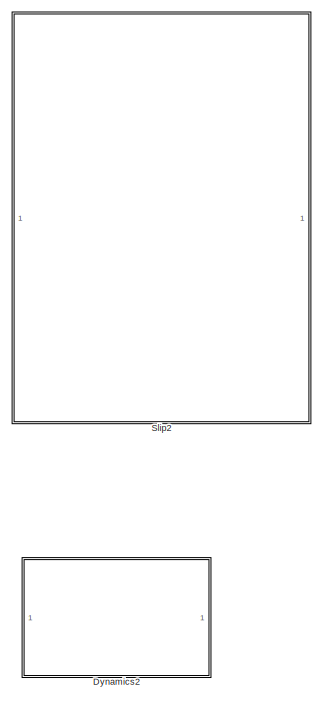
[diagram: root canvas - part 1/4, middle right region]
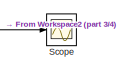
[diagram: root canvas - part 2/4, top left region]
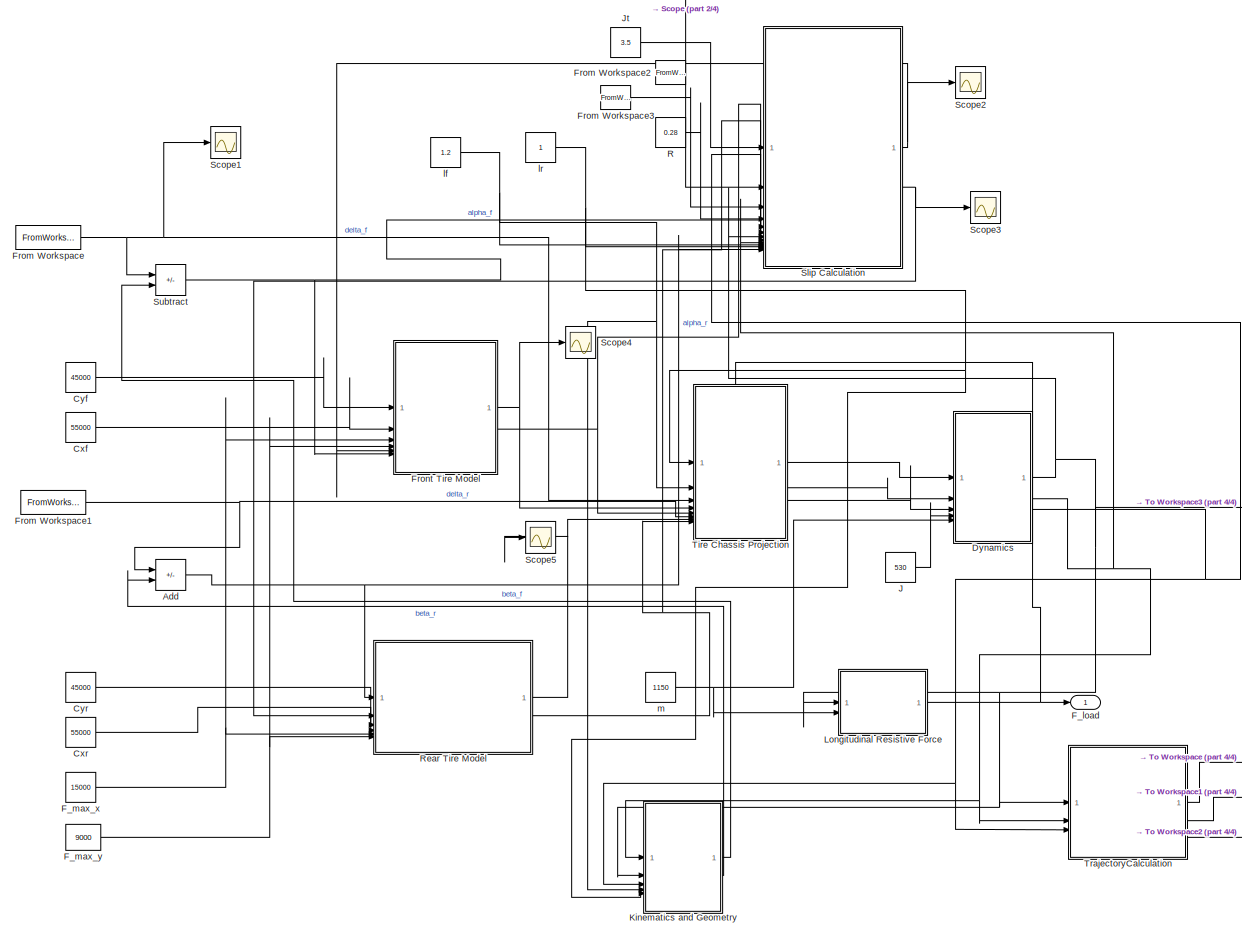
[diagram: root canvas - part 3/4, left side, full height]
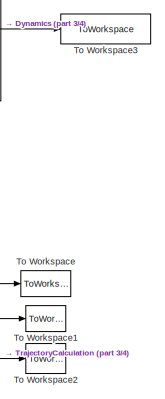
[diagram: root canvas - part 4/4, bottom center region]
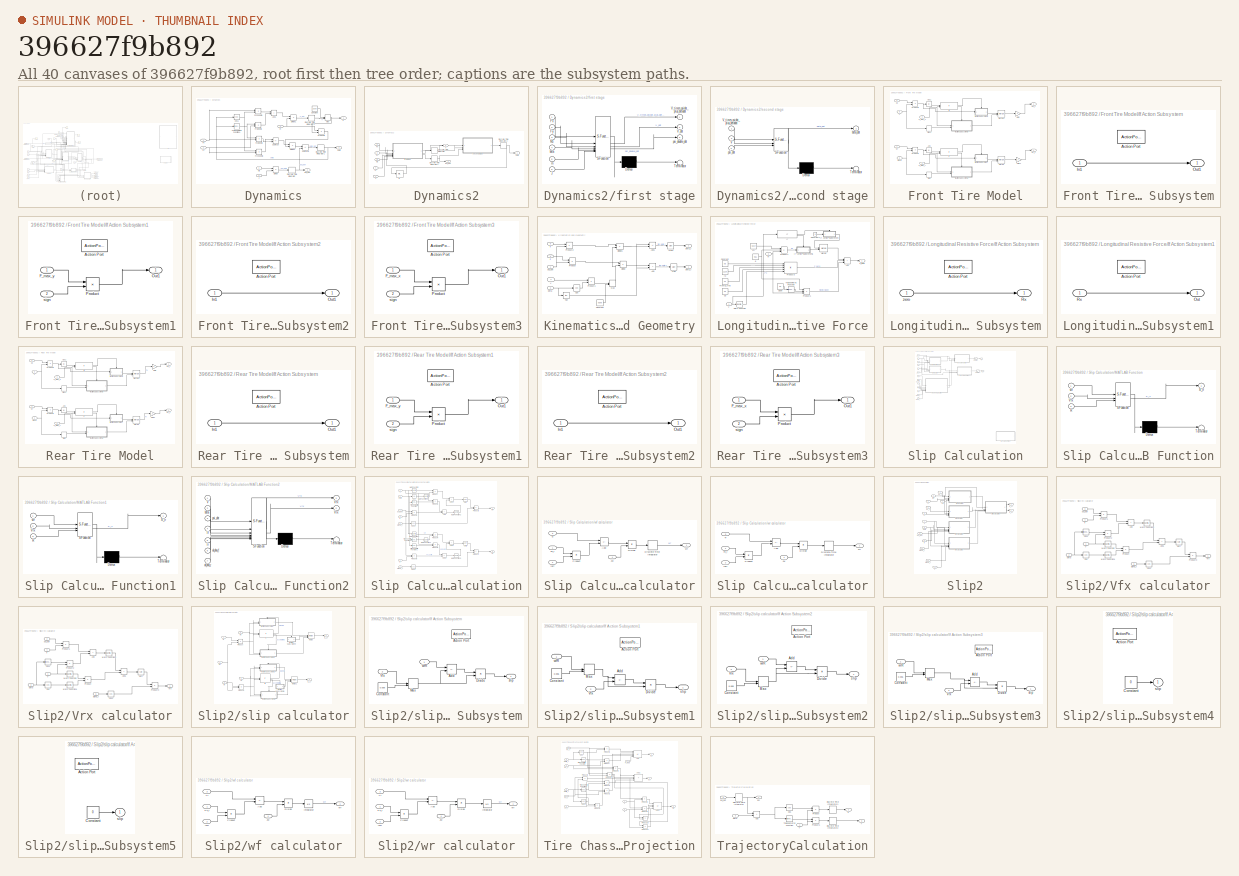
[diagram: thumbnail index - all 40 canvases of the model, root first then tree order]
MODEL slx_396627f9b892
KIND model
CONFIG AbsTol = auto
CONFIG EnableMultiTasking = on
CONFIG FixedStep = 0.001
CONFIG MaxStep = auto
CONFIG MinStep = auto
CONFIG RelTol = 1e-3
CONFIG SampleTimeConstraint = Unconstrained
CONFIG SolverName = ode14x
CONFIG StartTime = 0.0
CONFIG StopTime = 40
BLOCK [Sum] Add
  IconShape = rectangular
  Inputs = +-
BLOCK [Constant] Cxf
  Value = 55000
BLOCK [Constant] Cxr
  Value = 55000
BLOCK [Constant] Cyf
  Value = 45000
BLOCK [Constant] Cyr
  Value = 45000
BLOCK [SubSystem] Dynamics
BLOCK [Sum] Dynamics/Add1
  IconShape = rectangular
BLOCK [Constant] Dynamics/Constant
  Value = 0.005
BLOCK [Trigonometry] Dynamics/Cos1
  Operator = cos
BLOCK [DiscreteIntegrator] Dynamics/Discrete-Time Integrator
  ICPrevOutput = DiscIntNeverNeededParam
  ICPrevScaledInput = DiscIntNeverNeededParam
  InitialConditionSetting = Auto
  SampleTime = -1
BLOCK [DiscreteIntegrator] Dynamics/Discrete-Time Integrator1
  ICPrevOutput = DiscIntNeverNeededParam
  ICPrevScaledInput = DiscIntNeverNeededParam
  InitialConditionSetting = Auto
  SampleTime = -1
BLOCK [DiscreteIntegrator] Dynamics/Discrete-Time Integrator2
  ICPrevOutput = DiscIntNeverNeededParam
  ICPrevScaledInput = DiscIntNeverNeededParam
  InitialConditionSetting = Auto
  SampleTime = -1
BLOCK [Product] Dynamics/Divide
  Inputs = */
BLOCK [Product] Dynamics/Divide1
  Inputs = */
BLOCK [Product] Dynamics/Divide2
  Inputs = */
BLOCK [Inport] Dynamics/Fx
BLOCK [Product] Dynamics/Fxcosbeta
BLOCK [Product] Dynamics/Fxsinbeta
BLOCK [Inport] Dynamics/Fy
  Port = 2
BLOCK [Product] Dynamics/Fycosbeta
BLOCK [Product] Dynamics/Fysinbeta
BLOCK [Inport] Dynamics/J
  Port = 4
BLOCK [MinMax] Dynamics/Max
  Function = max
  Inputs = 2
BLOCK [Inport] Dynamics/Mz
  Port = 3
BLOCK [Product] Dynamics/Product6
BLOCK [Sum] Dynamics/Subtract
  IconShape = rectangular
  Inputs = +-
BLOCK [Sum] Dynamics/Subtract1
  IconShape = rectangular
  Inputs = +-
BLOCK [Trigonometry] Dynamics/Trigonometric Function1
BLOCK [Outport] Dynamics/V
BLOCK [Outport] Dynamics/beta
  Port = 3
BLOCK [Inport] Dynamics/m
  Port = 5
BLOCK [Outport] Dynamics/psi_dot
  Port = 2
BLOCK [SubSystem] Dynamics2
  Commented = on
BLOCK [DiscreteIntegrator] Dynamics2/Discrete-Time Integrator
  ICPrevOutput = DiscIntNeverNeededParam
  ICPrevScaledInput = DiscIntNeverNeededParam
  InitialConditionSetting = Auto
  SampleTime = -1
BLOCK [DiscreteIntegrator] Dynamics2/Discrete-Time Integrator1
  ICPrevOutput = DiscIntNeverNeededParam
  ICPrevScaledInput = DiscIntNeverNeededParam
  InitialConditionSetting = Auto
  SampleTime = -1
BLOCK [DiscreteIntegrator] Dynamics2/Discrete-Time Integrator2
  ICPrevOutput = DiscIntNeverNeededParam
  ICPrevScaledInput = DiscIntNeverNeededParam
  InitialConditionSetting = Auto
  SampleTime = -1
BLOCK [Inport] Dynamics2/Fx
BLOCK [Inport] Dynamics2/Fy
  Port = 2
BLOCK [InitialCondition] Dynamics2/IC
  Value = 0
BLOCK [Inport] Dynamics2/J
  Port = 5
BLOCK [Inport] Dynamics2/Mz
  Port = 3
BLOCK [Outport] Dynamics2/V
  Port = 2
BLOCK [Outport] Dynamics2/beta
BLOCK [SubSystem] Dynamics2/first stage
  ErrorFcn = Stateflow.Translate.translate
  LibrarySourceBlock = simulink/User-Defined\nFunctions/MATLAB Function
  PermitHierarchicalResolution = ExplicitOnly
  SFBlockType = MATLAB Function
  TreatAsAtomicUnit = on
BLOCK [Demux] Dynamics2/first stage/ Demux 
  Outputs = 1
BLOCK [S-Function] Dynamics2/first stage/ SFunction 
  EnableBusSupport = on
  FunctionName = sf_sfun
  PortCounts = [6 4]
  SFcnIsStateOwnerBlock = off
  SFunctionDeploymentMode = off
  Tag = Stateflow S-Function 2
BLOCK [Terminator] Dynamics2/first stage/ Terminator 
BLOCK [Inport] Dynamics2/first stage/Fx
BLOCK [Inport] Dynamics2/first stage/Fy
  Port = 2
BLOCK [Inport] Dynamics2/first stage/J
  Port = 6
BLOCK [Inport] Dynamics2/first stage/Mz
  Port = 3
BLOCK [Outport] Dynamics2/first stage/V_dot
  Port = 2
BLOCK [Outport] Dynamics2/first stage/V_times_psidot_plus_betadot
BLOCK [Inport] Dynamics2/first stage/beta
  Port = 4
BLOCK [Inport] Dynamics2/first stage/m
  Port = 5
BLOCK [Outport] Dynamics2/first stage/psi_double_dot
  Port = 3
BLOCK [Inport] Dynamics2/m
  Port = 4
BLOCK [Outport] Dynamics2/psi_dot
  Port = 3
BLOCK [SubSystem] Dynamics2/second stage
  ErrorFcn = Stateflow.Translate.translate
  LibrarySourceBlock = simulink/User-Defined\nFunctions/MATLAB Function
  PermitHierarchicalResolution = ExplicitOnly
  SFBlockType = MATLAB Function
  TreatAsAtomicUnit = on
BLOCK [Demux] Dynamics2/second stage/ Demux 
  Outputs = 1
BLOCK [S-Function] Dynamics2/second stage/ SFunction 
  EnableBusSupport = on
  FunctionName = sf_sfun
  PortCounts = [3 2]
  SFcnIsStateOwnerBlock = off
  SFunctionDeploymentMode = off
  Tag = Stateflow S-Function 3
BLOCK [Terminator] Dynamics2/second stage/ Terminator 
BLOCK [Inport] Dynamics2/second stage/V
  Port = 2
BLOCK [Inport] Dynamics2/second stage/V_times_psidot_plus_betadot
BLOCK [Outport] Dynamics2/second stage/beta_dot
BLOCK [Inport] Dynamics2/second stage/psi_dot
  Port = 3
BLOCK [Outport] F_load
BLOCK [Constant] F_max_x
  Value = 15000
BLOCK [Constant] F_max_y
  Value = 9000
BLOCK [FromWorkspace] From Workspace
  OutputAfterFinalValue = Holding final value
  VariableName = delta_f
BLOCK [FromWorkspace] From Workspace1
  OutputAfterFinalValue = Holding final value
  VariableName = delta_r
BLOCK [FromWorkspace] From Workspace2
  OutputAfterFinalValue = Holding final value
  VariableName = Tf
BLOCK [FromWorkspace] From Workspace3
  OutputAfterFinalValue = Holding final value
  VariableName = Tr
BLOCK [SubSystem] Front Tire Model
BLOCK [Abs] Front Tire Model/Abs
  SaturateOnIntegerOverflow = off
BLOCK [Abs] Front Tire Model/Abs1
  SaturateOnIntegerOverflow = off
BLOCK [Inport] Front Tire Model/Cx
  Port = 2
BLOCK [Inport] Front Tire Model/Cy
BLOCK [Inport] Front Tire Model/F_max_x
  Port = 3
BLOCK [Inport] Front Tire Model/F_max_y
  Port = 4
BLOCK [Outport] Front Tire Model/Fx_f
  Port = 2
BLOCK [Outport] Front Tire Model/Fy_f
BLOCK [Gain] Front Tire Model/Gain
  Gain = 2
BLOCK [Gain] Front Tire Model/Gain1
  Gain = 2
BLOCK [If] Front Tire Model/If
  IfExpression = u1 < u2
  NumInputs = 2
BLOCK [SubSystem] Front Tire Model/If Action Subsystem
  TreatAsAtomicUnit = on
BLOCK [ActionPort] Front Tire Model/If Action Subsystem/Action Port
  ActionPortLabel = if(u1 < u2)
BLOCK [Inport] Front Tire Model/If Action Subsystem/In1
BLOCK [Outport] Front Tire Model/If Action Subsystem/Out1
BLOCK [SubSystem] Front Tire Model/If Action Subsystem1
  TreatAsAtomicUnit = on
BLOCK [ActionPort] Front Tire Model/If Action Subsystem1/Action Port
  ActionPortLabel = else
BLOCK [Inport] Front Tire Model/If Action Subsystem1/F_max_y
BLOCK [Outport] Front Tire Model/If Action Subsystem1/Out1
BLOCK [Product] Front Tire Model/If Action Subsystem1/Product
BLOCK [Inport] Front Tire Model/If Action Subsystem1/sign
  Port = 2
BLOCK [SubSystem] Front Tire Model/If Action Subsystem2
  TreatAsAtomicUnit = on
BLOCK [ActionPort] Front Tire Model/If Action Subsystem2/Action Port
  ActionPortLabel = if(u1 < u2)
BLOCK [Inport] Front Tire Model/If Action Subsystem2/In1
BLOCK [Outport] Front Tire Model/If Action Subsystem2/Out1
BLOCK [SubSystem] Front Tire Model/If Action Subsystem3
  TreatAsAtomicUnit = on
BLOCK [ActionPort] Front Tire Model/If Action Subsystem3/Action Port
  ActionPortLabel = else
BLOCK [Inport] Front Tire Model/If Action Subsystem3/F_max_x
BLOCK [Outport] Front Tire Model/If Action Subsystem3/Out1
BLOCK [Product] Front Tire Model/If Action Subsystem3/Product
BLOCK [Inport] Front Tire Model/If Action Subsystem3/sign
  Port = 2
BLOCK [If] Front Tire Model/If1
  IfExpression = u1 < u2
  NumInputs = 2
BLOCK [Merge] Front Tire Model/Merge
BLOCK [Merge] Front Tire Model/Merge1
BLOCK [Product] Front Tire Model/Product1
BLOCK [Product] Front Tire Model/Product2
BLOCK [Signum] Front Tire Model/Sign
BLOCK [Signum] Front Tire Model/Sign1
BLOCK [Inport] Front Tire Model/alpha
  Port = 6
BLOCK [Inport] Front Tire Model/s
  Port = 5
BLOCK [Constant] J
  Value = 530
BLOCK [Constant] Jt
  Value = 3.5
BLOCK [SubSystem] Kinematics and Geometry
BLOCK [Sum] Kinematics and Geometry/Add
  IconShape = rectangular
BLOCK [Sum] Kinematics and Geometry/Add1
  IconShape = rectangular
  Inputs = +-
BLOCK [Trigonometry] Kinematics and Geometry/Atan
  Operator = atan
BLOCK [Trigonometry] Kinematics and Geometry/Atan1
  Operator = atan
BLOCK [Constant] Kinematics and Geometry/Constant
  Value = 0.005
BLOCK [Trigonometry] Kinematics and Geometry/Cos
  Operator = cos
BLOCK [Product] Kinematics and Geometry/Divide
  Inputs = */
BLOCK [Product] Kinematics and Geometry/Divide1
  Inputs = */
BLOCK [MinMax] Kinematics and Geometry/Max
  Function = max
  Inputs = 2
BLOCK [Product] Kinematics and Geometry/Product
BLOCK [Product] Kinematics and Geometry/Product1
BLOCK [Product] Kinematics and Geometry/Product2
BLOCK [Trigonometry] Kinematics and Geometry/Tan
  Operator = tan
BLOCK [Inport] Kinematics and Geometry/V
  Port = 2
BLOCK [Inport] Kinematics and Geometry/beta
  Port = 3
BLOCK [Outport] Kinematics and Geometry/beta_f
BLOCK [Outport] Kinematics and Geometry/beta_r
  Port = 2
BLOCK [Inport] Kinematics and Geometry/lf
  Port = 4
BLOCK [Inport] Kinematics and Geometry/lr
  Port = 5
BLOCK [Inport] Kinematics and Geometry/psi_dot
BLOCK [SubSystem] Longitudinal Resistive Force
BLOCK [Sum] Longitudinal Resistive Force/Add
  IconShape = rectangular
  Inputs = +++
BLOCK [Constant] Longitudinal Resistive Force/Cd
  Value = 0.3
BLOCK [Constant] Longitudinal Resistive Force/Constant
  Value = 0.5
BLOCK [Constant] Longitudinal Resistive Force/Constant1
  Value = 0
BLOCK [Constant] Longitudinal Resistive Force/Crr
  Value = 0.014
BLOCK [Outport] Longitudinal Resistive Force/F_load
BLOCK [Constant] Longitudinal Resistive Force/Frontal_Area
  Value = 2.2
BLOCK [If] Longitudinal Resistive Force/If
  IfExpression = u1 == 0
BLOCK [SubSystem] Longitudinal Resistive Force/If Action Subsystem
  TreatAsAtomicUnit = on
BLOCK [ActionPort] Longitudinal Resistive Force/If Action Subsystem/Action Port
  ActionPortLabel = if(u1 == 0)
BLOCK [Outport] Longitudinal Resistive Force/If Action Subsystem/Rx
BLOCK [Inport] Longitudinal Resistive Force/If Action Subsystem/zero
BLOCK [SubSystem] Longitudinal Resistive Force/If Action Subsystem1
  TreatAsAtomicUnit = on
BLOCK [ActionPort] Longitudinal Resistive Force/If Action Subsystem1/Action Port
  ActionPortLabel = else
BLOCK [Outport] Longitudinal Resistive Force/If Action Subsystem1/Out
BLOCK [Inport] Longitudinal Resistive Force/If Action Subsystem1/Rx
BLOCK [Math] Longitudinal Resistive Force/Math Function
  Operator = magnitude^2
BLOCK [Merge] Longitudinal Resistive Force/Merge
BLOCK [Product] Longitudinal Resistive Force/Product1
  Inputs = 3
BLOCK [Product] Longitudinal Resistive Force/Product3
  Inputs = 5
BLOCK [Product] Longitudinal Resistive Force/Product4
  Inputs = 3
BLOCK [Trigonometry] Longitudinal Resistive Force/Trigonometric Function
BLOCK [Inport] Longitudinal Resistive Force/V
BLOCK [Constant] Longitudinal Resistive Force/g
  Value = 9.81
BLOCK [Inport] Longitudinal Resistive Force/m
  Port = 2
BLOCK [Constant] Longitudinal Resistive Force/ro
  Value = 1.225
BLOCK [Constant] Longitudinal Resistive Force/slope
  Value = 0.0
BLOCK [Constant] R
  Value = 0.28
BLOCK [SubSystem] Rear Tire Model
BLOCK [Abs] Rear Tire Model/Abs
  SaturateOnIntegerOverflow = off
BLOCK [Abs] Rear Tire Model/Abs1
  SaturateOnIntegerOverflow = off
BLOCK [Inport] Rear Tire Model/Cx
  Port = 4
BLOCK [Inport] Rear Tire Model/Cy
  Port = 3
BLOCK [Inport] Rear Tire Model/F_max_x
  Port = 5
BLOCK [Inport] Rear Tire Model/F_max_y
  Port = 6
BLOCK [Outport] Rear Tire Model/Fx_r
  Port = 2
BLOCK [Outport] Rear Tire Model/Fy_r
BLOCK [Gain] Rear Tire Model/Gain
  Gain = 2
BLOCK [Gain] Rear Tire Model/Gain1
  Gain = 2
BLOCK [If] Rear Tire Model/If
  IfExpression = u1 < u2
  NumInputs = 2
BLOCK [SubSystem] Rear Tire Model/If Action Subsystem
  TreatAsAtomicUnit = on
BLOCK [ActionPort] Rear Tire Model/If Action Subsystem/Action Port
  ActionPortLabel = if(u1 < u2)
BLOCK [Inport] Rear Tire Model/If Action Subsystem/In1
BLOCK [Outport] Rear Tire Model/If Action Subsystem/Out1
BLOCK [SubSystem] Rear Tire Model/If Action Subsystem1
  TreatAsAtomicUnit = on
BLOCK [ActionPort] Rear Tire Model/If Action Subsystem1/Action Port
  ActionPortLabel = else
BLOCK [Inport] Rear Tire Model/If Action Subsystem1/F_max_y
BLOCK [Outport] Rear Tire Model/If Action Subsystem1/Out1
BLOCK [Product] Rear Tire Model/If Action Subsystem1/Product
BLOCK [Inport] Rear Tire Model/If Action Subsystem1/sign
  Port = 2
BLOCK [SubSystem] Rear Tire Model/If Action Subsystem2
  TreatAsAtomicUnit = on
BLOCK [ActionPort] Rear Tire Model/If Action Subsystem2/Action Port
  ActionPortLabel = if(u1 < u2)
BLOCK [Inport] Rear Tire Model/If Action Subsystem2/In1
BLOCK [Outport] Rear Tire Model/If Action Subsystem2/Out1
BLOCK [SubSystem] Rear Tire Model/If Action Subsystem3
  TreatAsAtomicUnit = on
BLOCK [ActionPort] Rear Tire Model/If Action Subsystem3/Action Port
  ActionPortLabel = else
BLOCK [Inport] Rear Tire Model/If Action Subsystem3/F_max_x
BLOCK [Outport] Rear Tire Model/If Action Subsystem3/Out1
BLOCK [Product] Rear Tire Model/If Action Subsystem3/Product
BLOCK [Inport] Rear Tire Model/If Action Subsystem3/sign
  Port = 2
BLOCK [If] Rear Tire Model/If1
  IfExpression = u1 < u2
  NumInputs = 2
BLOCK [Merge] Rear Tire Model/Merge
BLOCK [Merge] Rear Tire Model/Merge1
BLOCK [Product] Rear Tire Model/Product1
BLOCK [Product] Rear Tire Model/Product2
BLOCK [Signum] Rear Tire Model/Sign
BLOCK [Signum] Rear Tire Model/Sign1
BLOCK [Inport] Rear Tire Model/alpha
BLOCK [Inport] Rear Tire Model/s
  Port = 2
BLOCK [Scope] Scope
  Floating = off
  NumInputPorts = 1
  ScopeSpecificationString = Simulink.scopes.TimeScopeBlockCfg('CurrentConfiguration', extmgr.ConfigurationSet(extmgr.Configuration('Core','General UI',true),extmgr.Configuration('Core','Source UI',true),extmgr.Configuration('Sources','WiredSimulink',true),extmgr.Configuration('Visuals','Time Domain',true,'SerializedDisplays',{struct('MinYLimReal','-88.75','MaxYLimReal','798.75','YLabelReal','','MinYLimMag','0.00000','MaxYLim...<+1327ch>
BLOCK [Scope] Scope1
  Floating = off
  NumInputPorts = 1
  ScopeSpecificationString = Simulink.scopes.TimeScopeBlockCfg('CurrentConfiguration', extmgr.ConfigurationSet(extmgr.Configuration('Core','General UI',true),extmgr.Configuration('Core','Source UI',true),extmgr.Configuration('Sources','WiredSimulink',true,'DataLoggingVariableName','ScopeData1'),extmgr.Configuration('Visuals','Time Domain',true),extmgr.Configuration('Tools','Plot Navigation',true),extmgr.Configuration('Tools',...<+40ch>
BLOCK [Scope] Scope2
  Floating = off
  NumInputPorts = 1
  ScopeSpecificationString = Simulink.scopes.TimeScopeBlockCfg('CurrentConfiguration', extmgr.ConfigurationSet(extmgr.Configuration('Core','General UI',true),extmgr.Configuration('Core','Source UI',true),extmgr.Configuration('Sources','WiredSimulink',true,'DataLoggingVariableName','ScopeData2'),extmgr.Configuration('Visuals','Time Domain',true,'SerializedDisplays',{struct('MinYLimReal','-1.25','MaxYLimReal','1.25','YLabelReal...<+1378ch>
BLOCK [Scope] Scope3
  Floating = off
  NumInputPorts = 1
  ScopeSpecificationString = Simulink.scopes.TimeScopeBlockCfg('CurrentConfiguration', extmgr.ConfigurationSet(extmgr.Configuration('Core','General UI',true),extmgr.Configuration('Core','Source UI',true),extmgr.Configuration('Sources','WiredSimulink',true,'DataLoggingVariableName','ScopeData3'),extmgr.Configuration('Visuals','Time Domain',true,'SerializedDisplays',{struct('MinYLimReal','0.22882','MaxYLimReal','0.22968','YLabe...<+1394ch>
BLOCK [Scope] Scope4
  Floating = off
  NumInputPorts = 1
  ScopeSpecificationString = Simulink.scopes.TimeScopeBlockCfg('CurrentConfiguration', extmgr.ConfigurationSet(extmgr.Configuration('Core','General UI',true),extmgr.Configuration('Core','Source UI',true),extmgr.Configuration('Sources','WiredSimulink',true,'DataLoggingVariableName','ScopeData4'),extmgr.Configuration('Visuals','Time Domain',true,'SerializedDisplays',{struct('MinYLimReal','-5916.10493','MaxYLimReal','6155.25389'...<+1399ch>
BLOCK [Scope] Scope5
  Floating = off
  NumInputPorts = 1
  ScopeSpecificationString = Simulink.scopes.TimeScopeBlockCfg('CurrentConfiguration', extmgr.ConfigurationSet(extmgr.Configuration('Core','General UI',true),extmgr.Configuration('Core','Source UI',true),extmgr.Configuration('Sources','WiredSimulink',true,'DataLoggingVariableName','ScopeData5'),extmgr.Configuration('Visuals','Time Domain',true,'SerializedDisplays',{struct('MinYLimReal','-6567.97978','MaxYLimReal','6822.14739'...<+1428ch>
BLOCK [SubSystem] Slip Calculation
BLOCK [Inport] Slip Calculation/Fx_f
  Port = 5
BLOCK [Inport] Slip Calculation/Fx_r
  Port = 6
BLOCK [Inport] Slip Calculation/Jw
BLOCK [SubSystem] Slip Calculation/MATLAB Function
  ErrorFcn = Stateflow.Translate.translate
  LibrarySourceBlock = simulink/User-Defined\nFunctions/MATLAB Function
  PermitHierarchicalResolution = ExplicitOnly
  SFBlockType = MATLAB Function
  TreatAsAtomicUnit = on
BLOCK [Demux] Slip Calculation/MATLAB Function/ Demux 
  Outputs = 1
BLOCK [S-Function] Slip Calculation/MATLAB Function/ SFunction 
  EnableBusSupport = on
  FunctionName = sf_sfun
  PortCounts = [3 2]
  SFcnIsStateOwnerBlock = off
  SFunctionDeploymentMode = off
  Tag = Stateflow S-Function 4
BLOCK [Terminator] Slip Calculation/MATLAB Function/ Terminator 
BLOCK [Inport] Slip Calculation/MATLAB Function/R
  Port = 3
BLOCK [Outport] Slip Calculation/MATLAB Function/S_lf
BLOCK [Inport] Slip Calculation/MATLAB Function/Vfx
  Port = 2
BLOCK [Inport] Slip Calculation/MATLAB Function/wf
BLOCK [SubSystem] Slip Calculation/MATLAB Function1
  ErrorFcn = Stateflow.Translate.translate
  LibrarySourceBlock = simulink/User-Defined\nFunctions/MATLAB Function
  PermitHierarchicalResolution = ExplicitOnly
  SFBlockType = MATLAB Function
  TreatAsAtomicUnit = on
BLOCK [Demux] Slip Calculation/MATLAB Function1/ Demux 
  Outputs = 1
BLOCK [S-Function] Slip Calculation/MATLAB Function1/ SFunction 
  EnableBusSupport = on
  FunctionName = sf_sfun
  PortCounts = [3 2]
  SFcnIsStateOwnerBlock = off
  SFunctionDeploymentMode = off
  Tag = Stateflow S-Function 5
BLOCK [Terminator] Slip Calculation/MATLAB Function1/ Terminator 
BLOCK [Inport] Slip Calculation/MATLAB Function1/R
  Port = 3
BLOCK [Outport] Slip Calculation/MATLAB Function1/S_lr
BLOCK [Inport] Slip Calculation/MATLAB Function1/Vrx
  Port = 2
BLOCK [Inport] Slip Calculation/MATLAB Function1/wr
BLOCK [SubSystem] Slip Calculation/MATLAB Function2
  Commented = on
  ErrorFcn = Stateflow.Translate.translate
  LibrarySourceBlock = simulink/User-Defined\nFunctions/MATLAB Function
  PermitHierarchicalResolution = ExplicitOnly
  SFBlockType = MATLAB Function
  TreatAsAtomicUnit = on
BLOCK [Demux] Slip Calculation/MATLAB Function2/ Demux 
  Outputs = 1
BLOCK [S-Function] Slip Calculation/MATLAB Function2/ SFunction 
  EnableBusSupport = on
  FunctionName = sf_sfun
  PortCounts = [7 3]
  SFcnIsStateOwnerBlock = off
  SFunctionDeploymentMode = off
  Tag = Stateflow S-Function 6
BLOCK [Terminator] Slip Calculation/MATLAB Function2/ Terminator 
BLOCK [Inport] Slip Calculation/MATLAB Function2/V
BLOCK [Outport] Slip Calculation/MATLAB Function2/Vfx
BLOCK [Outport] Slip Calculation/MATLAB Function2/Vrx
  Port = 2
BLOCK [Inport] Slip Calculation/MATLAB Function2/alpha_f
  Port = 6
BLOCK [Inport] Slip Calculation/MATLAB Function2/alpha_r
  Port = 7
BLOCK [Inport] Slip Calculation/MATLAB Function2/beta
  Port = 2
BLOCK [Inport] Slip Calculation/MATLAB Function2/lf
  Port = 4
BLOCK [Inport] Slip Calculation/MATLAB Function2/lr
  Port = 5
BLOCK [Inport] Slip Calculation/MATLAB Function2/psi_dot
  Port = 3
BLOCK [Inport] Slip Calculation/R
  Port = 4
BLOCK [Outport] Slip Calculation/S_lf
BLOCK [Outport] Slip Calculation/S_lr
  Port = 2
BLOCK [Saturate] Slip Calculation/Saturation
  LowerLimit = -1
  UpperLimit = 1
BLOCK [Saturate] Slip Calculation/Saturation1
  LowerLimit = -1
  UpperLimit = 1
BLOCK [Inport] Slip Calculation/Tf
  Port = 2
BLOCK [Inport] Slip Calculation/Tr
  Port = 3
BLOCK [Inport] Slip Calculation/V
  Port = 7
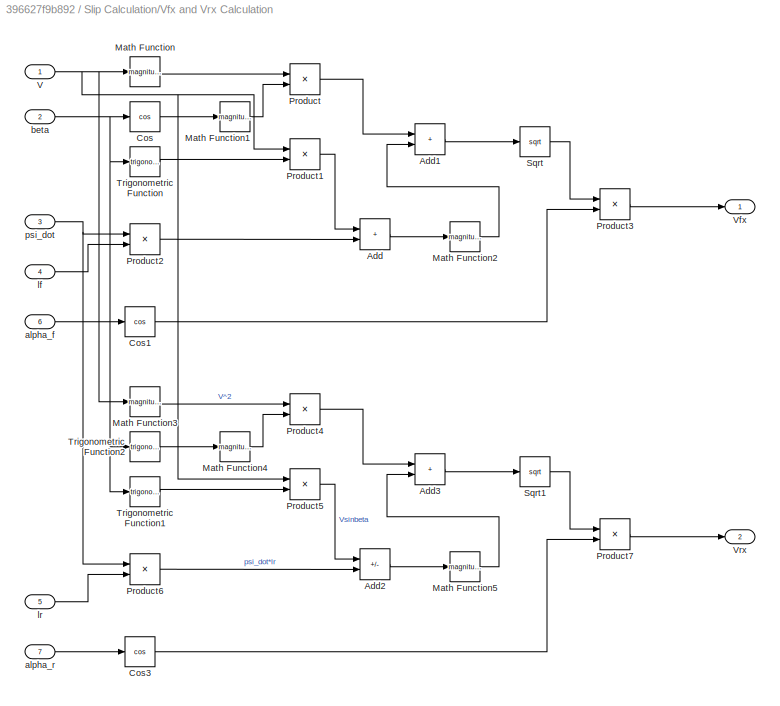
BLOCK [SubSystem] Slip Calculation/Vfx and Vrx Calculation
BLOCK [Sum] Slip Calculation/Vfx and Vrx Calculation/Add
  IconShape = rectangular
BLOCK [Sum] Slip Calculation/Vfx and Vrx Calculation/Add1
  IconShape = rectangular
BLOCK [Sum] Slip Calculation/Vfx and Vrx Calculation/Add2
  IconShape = rectangular
  Inputs = +-
BLOCK [Sum] Slip Calculation/Vfx and Vrx Calculation/Add3
  IconShape = rectangular
BLOCK [Trigonometry] Slip Calculation/Vfx and Vrx Calculation/Cos
  Operator = cos
BLOCK [Trigonometry] Slip Calculation/Vfx and Vrx Calculation/Cos1
  Operator = cos
BLOCK [Trigonometry] Slip Calculation/Vfx and Vrx Calculation/Cos3
  Operator = cos
BLOCK [Math] Slip Calculation/Vfx and Vrx Calculation/Math Function
  Operator = magnitude^2
BLOCK [Math] Slip Calculation/Vfx and Vrx Calculation/Math Function1
  Operator = magnitude^2
BLOCK [Math] Slip Calculation/Vfx and Vrx Calculation/Math Function2
  Operator = magnitude^2
BLOCK [Math] Slip Calculation/Vfx and Vrx Calculation/Math Function3
  Operator = magnitude^2
BLOCK [Math] Slip Calculation/Vfx and Vrx Calculation/Math Function4
  Operator = magnitude^2
BLOCK [Math] Slip Calculation/Vfx and Vrx Calculation/Math Function5
  Operator = magnitude^2
BLOCK [Product] Slip Calculation/Vfx and Vrx Calculation/Product
BLOCK [Product] Slip Calculation/Vfx and Vrx Calculation/Product1
BLOCK [Product] Slip Calculation/Vfx and Vrx Calculation/Product2
BLOCK [Product] Slip Calculation/Vfx and Vrx Calculation/Product3
BLOCK [Product] Slip Calculation/Vfx and Vrx Calculation/Product4
BLOCK [Product] Slip Calculation/Vfx and Vrx Calculation/Product5
BLOCK [Product] Slip Calculation/Vfx and Vrx Calculation/Product6
BLOCK [Product] Slip Calculation/Vfx and Vrx Calculation/Product7
BLOCK [Sqrt] Slip Calculation/Vfx and Vrx Calculation/Sqrt
BLOCK [Sqrt] Slip Calculation/Vfx and Vrx Calculation/Sqrt1
BLOCK [Trigonometry] Slip Calculation/Vfx and Vrx Calculation/Trigonometric Function
BLOCK [Trigonometry] Slip Calculation/Vfx and Vrx Calculation/Trigonometric Function1
BLOCK [Trigonometry] Slip Calculation/Vfx and Vrx Calculation/Trigonometric Function2
BLOCK [Inport] Slip Calculation/Vfx and Vrx Calculation/V
BLOCK [Outport] Slip Calculation/Vfx and Vrx Calculation/Vfx
BLOCK [Outport] Slip Calculation/Vfx and Vrx Calculation/Vrx
  Port = 2
BLOCK [Inport] Slip Calculation/Vfx and Vrx Calculation/alpha_f
  Port = 6
BLOCK [Inport] Slip Calculation/Vfx and Vrx Calculation/alpha_r
  Port = 7
BLOCK [Inport] Slip Calculation/Vfx and Vrx Calculation/beta
  Port = 2
BLOCK [Inport] Slip Calculation/Vfx and Vrx Calculation/lf
  Port = 4
BLOCK [Inport] Slip Calculation/Vfx and Vrx Calculation/lr
  Port = 5
BLOCK [Inport] Slip Calculation/Vfx and Vrx Calculation/psi_dot
  Port = 3
BLOCK [Inport] Slip Calculation/alpha_f
  Port = 12
BLOCK [Inport] Slip Calculation/alpha_r
  Port = 13
BLOCK [Inport] Slip Calculation/beta
  Port = 8
BLOCK [Inport] Slip Calculation/lf
  Port = 10
BLOCK [Inport] Slip Calculation/lr
  Port = 11
BLOCK [Inport] Slip Calculation/psi_dot
  Port = 9
BLOCK [SubSystem] Slip Calculation/wf calculator
BLOCK [Sum] Slip Calculation/wf calculator/Add
  IconShape = rectangular
  Inputs = +-
BLOCK [DiscreteIntegrator] Slip Calculation/wf calculator/Discrete-Time Integrator
  ICPrevOutput = DiscIntNeverNeededParam
  ICPrevScaledInput = DiscIntNeverNeededParam
  InitialConditionSetting = Auto
  SampleTime = -1
BLOCK [Product] Slip Calculation/wf calculator/Divide
  Inputs = */
BLOCK [Inport] Slip Calculation/wf calculator/Fx_f
BLOCK [Inport] Slip Calculation/wf calculator/Jw
  Port = 4
BLOCK [Product] Slip Calculation/wf calculator/Product
BLOCK [Inport] Slip Calculation/wf calculator/Tf
  Port = 3
BLOCK [Inport] Slip Calculation/wf calculator/reff
  Port = 2
BLOCK [Outport] Slip Calculation/wf calculator/wf
BLOCK [SubSystem] Slip Calculation/wr calculator
BLOCK [Sum] Slip Calculation/wr calculator/Add
  IconShape = rectangular
  Inputs = +-
BLOCK [DiscreteIntegrator] Slip Calculation/wr calculator/Discrete-Time Integrator
  ICPrevOutput = DiscIntNeverNeededParam
  ICPrevScaledInput = DiscIntNeverNeededParam
  InitialConditionSetting = Auto
  SampleTime = -1
BLOCK [Product] Slip Calculation/wr calculator/Divide
  Inputs = */
BLOCK [Inport] Slip Calculation/wr calculator/Fx_r
BLOCK [Inport] Slip Calculation/wr calculator/Jw
  Port = 4
BLOCK [Product] Slip Calculation/wr calculator/Product
BLOCK [Inport] Slip Calculation/wr calculator/Tr
  Port = 3
BLOCK [Inport] Slip Calculation/wr calculator/reff
  Port = 2
BLOCK [Outport] Slip Calculation/wr calculator/wr
BLOCK [SubSystem] Slip2
  Commented = on
BLOCK [Inport] Slip2/Fx_f
BLOCK [Inport] Slip2/Fx_r
  Port = 5
BLOCK [Inport] Slip2/Jw
  Port = 4
BLOCK [Outport] Slip2/S_Lf
BLOCK [Outport] Slip2/S_Lr
  Port = 2
BLOCK [Inport] Slip2/Tf
  Port = 3
BLOCK [Inport] Slip2/Tr
  Port = 6
BLOCK [Inport] Slip2/V
  Port = 7
BLOCK [SubSystem] Slip2/Vfx calculator
BLOCK [Sum] Slip2/Vfx calculator/Add
  IconShape = rectangular
BLOCK [Sum] Slip2/Vfx calculator/Add1
  IconShape = rectangular
BLOCK [Trigonometry] Slip2/Vfx calculator/Cos
  Operator = cos
BLOCK [Trigonometry] Slip2/Vfx calculator/Cos1
BLOCK [Trigonometry] Slip2/Vfx calculator/Cos2
  Operator = cos
BLOCK [Math] Slip2/Vfx calculator/Math Function
  Operator = magnitude^2
BLOCK [Math] Slip2/Vfx calculator/Math Function1
  Operator = magnitude^2
BLOCK [Math] Slip2/Vfx calculator/Math Function2
  Operator = magnitude^2
BLOCK [Product] Slip2/Vfx calculator/Product
BLOCK [Product] Slip2/Vfx calculator/Product1
BLOCK [Product] Slip2/Vfx calculator/Product2
BLOCK [Product] Slip2/Vfx calculator/Product3
BLOCK [Sqrt] Slip2/Vfx calculator/Sqrt
BLOCK [Inport] Slip2/Vfx calculator/V
BLOCK [Outport] Slip2/Vfx calculator/Vfx
BLOCK [Inport] Slip2/Vfx calculator/alpha_f
  Port = 5
BLOCK [Inport] Slip2/Vfx calculator/beta
  Port = 2
BLOCK [Inport] Slip2/Vfx calculator/lf
  Port = 4
BLOCK [Inport] Slip2/Vfx calculator/psi_dot
  Port = 3
BLOCK [SubSystem] Slip2/Vrx calculator
BLOCK [Sum] Slip2/Vrx calculator/Add
  IconShape = rectangular
BLOCK [Sum] Slip2/Vrx calculator/Add1
  IconShape = rectangular
BLOCK [Trigonometry] Slip2/Vrx calculator/Cos
  Operator = cos
BLOCK [Trigonometry] Slip2/Vrx calculator/Cos1
BLOCK [Trigonometry] Slip2/Vrx calculator/Cos2
  Operator = cos
BLOCK [Math] Slip2/Vrx calculator/Math Function
  Operator = magnitude^2
BLOCK [Math] Slip2/Vrx calculator/Math Function1
  Operator = magnitude^2
BLOCK [Math] Slip2/Vrx calculator/Math Function2
  Operator = magnitude^2
BLOCK [Product] Slip2/Vrx calculator/Product
BLOCK [Product] Slip2/Vrx calculator/Product1
BLOCK [Product] Slip2/Vrx calculator/Product2
BLOCK [Product] Slip2/Vrx calculator/Product3
BLOCK [Sqrt] Slip2/Vrx calculator/Sqrt
BLOCK [Inport] Slip2/Vrx calculator/V
BLOCK [Outport] Slip2/Vrx calculator/Vrx
BLOCK [Inport] Slip2/Vrx calculator/alpha_r
  Port = 5
BLOCK [Inport] Slip2/Vrx calculator/beta
  Port = 3
BLOCK [Inport] Slip2/Vrx calculator/lr
  Port = 4
BLOCK [Inport] Slip2/Vrx calculator/psi_dot
  Port = 2
BLOCK [Inport] Slip2/alpha_f
  Port = 11
BLOCK [Inport] Slip2/alpha_r
  Port = 13
BLOCK [Inport] Slip2/beta
  Port = 8
BLOCK [Inport] Slip2/lf
  Port = 10
BLOCK [Inport] Slip2/lr
  Port = 12
BLOCK [Inport] Slip2/psi_dot
  Port = 9
BLOCK [Inport] Slip2/reff
  Port = 2
BLOCK [SubSystem] Slip2/slip calculator
BLOCK [If] Slip2/slip calculator/If
  ElseIfExpressions = u1 < u2
  IfExpression = u1 > u2
  NumInputs = 2
BLOCK [SubSystem] Slip2/slip calculator/If Action Subsystem
  TreatAsAtomicUnit = on
BLOCK [ActionPort] Slip2/slip calculator/If Action Subsystem/Action Port
  ActionPortLabel = if(u1 > u2)
BLOCK [Sum] Slip2/slip calculator/If Action Subsystem/Add
  IconShape = rectangular
  Inputs = +-
BLOCK [Constant] Slip2/slip calculator/If Action Subsystem/Constant
  Value = 0.005
BLOCK [Product] Slip2/slip calculator/If Action Subsystem/Divide
  Inputs = */
BLOCK [MinMax] Slip2/slip calculator/If Action Subsystem/Max
  Function = max
  Inputs = 2
BLOCK [Inport] Slip2/slip calculator/If Action Subsystem/Vfx
  Port = 2
BLOCK [Outport] Slip2/slip calculator/If Action Subsystem/slip
BLOCK [Inport] Slip2/slip calculator/If Action Subsystem/wfR
BLOCK [SubSystem] Slip2/slip calculator/If Action Subsystem1
  TreatAsAtomicUnit = on
BLOCK [ActionPort] Slip2/slip calculator/If Action Subsystem1/Action Port
  ActionPortLabel = elseif(u1 < u2)
BLOCK [Sum] Slip2/slip calculator/If Action Subsystem1/Add
  IconShape = rectangular
  Inputs = +-
BLOCK [Constant] Slip2/slip calculator/If Action Subsystem1/Constant
  Value = 0.005
BLOCK [Product] Slip2/slip calculator/If Action Subsystem1/Divide
  Inputs = */
BLOCK [MinMax] Slip2/slip calculator/If Action Subsystem1/Max
  Function = max
  Inputs = 2
BLOCK [Inport] Slip2/slip calculator/If Action Subsystem1/Vfx
  Port = 2
BLOCK [Outport] Slip2/slip calculator/If Action Subsystem1/slip
BLOCK [Inport] Slip2/slip calculator/If Action Subsystem1/wfR
BLOCK [SubSystem] Slip2/slip calculator/If Action Subsystem2
  TreatAsAtomicUnit = on
BLOCK [ActionPort] Slip2/slip calculator/If Action Subsystem2/Action Port
  ActionPortLabel = if(u1 > u2)
BLOCK [Sum] Slip2/slip calculator/If Action Subsystem2/Add
  IconShape = rectangular
  Inputs = +-
BLOCK [Constant] Slip2/slip calculator/If Action Subsystem2/Constant
  Value = 0.005
BLOCK [Product] Slip2/slip calculator/If Action Subsystem2/Divide
  Inputs = */
BLOCK [MinMax] Slip2/slip calculator/If Action Subsystem2/Max
  Function = max
  Inputs = 2
BLOCK [Inport] Slip2/slip calculator/If Action Subsystem2/Vrx
  Port = 2
BLOCK [Outport] Slip2/slip calculator/If Action Subsystem2/slip
BLOCK [Inport] Slip2/slip calculator/If Action Subsystem2/wrR
BLOCK [SubSystem] Slip2/slip calculator/If Action Subsystem3
  TreatAsAtomicUnit = on
BLOCK [ActionPort] Slip2/slip calculator/If Action Subsystem3/Action Port
  ActionPortLabel = elseif(u1 < u2)
BLOCK [Sum] Slip2/slip calculator/If Action Subsystem3/Add
  IconShape = rectangular
  Inputs = +-
BLOCK [Constant] Slip2/slip calculator/If Action Subsystem3/Constant
  Value = 0.005
BLOCK [Product] Slip2/slip calculator/If Action Subsystem3/Divide
  Inputs = */
BLOCK [MinMax] Slip2/slip calculator/If Action Subsystem3/Max
  Function = max
  Inputs = 2
BLOCK [Inport] Slip2/slip calculator/If Action Subsystem3/Vrx
  Port = 2
BLOCK [Outport] Slip2/slip calculator/If Action Subsystem3/slip
BLOCK [Inport] Slip2/slip calculator/If Action Subsystem3/wrR
BLOCK [SubSystem] Slip2/slip calculator/If Action Subsystem4
  TreatAsAtomicUnit = on
BLOCK [ActionPort] Slip2/slip calculator/If Action Subsystem4/Action Port
  ActionPortLabel = else
BLOCK [Constant] Slip2/slip calculator/If Action Subsystem4/Constant
  Value = 0
BLOCK [Outport] Slip2/slip calculator/If Action Subsystem4/slip
BLOCK [SubSystem] Slip2/slip calculator/If Action Subsystem5
  TreatAsAtomicUnit = on
BLOCK [ActionPort] Slip2/slip calculator/If Action Subsystem5/Action Port
  ActionPortLabel = else
BLOCK [Constant] Slip2/slip calculator/If Action Subsystem5/Constant
  Value = 0
BLOCK [Outport] Slip2/slip calculator/If Action Subsystem5/slip
BLOCK [If] Slip2/slip calculator/If1
  ElseIfExpressions = u1 < u2
  IfExpression = u1 > u2
  NumInputs = 2
BLOCK [Merge] Slip2/slip calculator/Merge
  Inputs = 3
BLOCK [Merge] Slip2/slip calculator/Merge1
  Inputs = 3
BLOCK [Product] Slip2/slip calculator/Product
BLOCK [Product] Slip2/slip calculator/Product1
BLOCK [Outport] Slip2/slip calculator/S_Lf
BLOCK [Outport] Slip2/slip calculator/S_Lr
  Port = 2
BLOCK [Inport] Slip2/slip calculator/Vfx
  Port = 4
BLOCK [Inport] Slip2/slip calculator/Vrx
  Port = 5
BLOCK [Inport] Slip2/slip calculator/reff
BLOCK [Inport] Slip2/slip calculator/wf
  Port = 2
BLOCK [Inport] Slip2/slip calculator/wr
  Port = 3
BLOCK [SubSystem] Slip2/wf calculator
BLOCK [Sum] Slip2/wf calculator/Add
  IconShape = rectangular
  Inputs = +-
BLOCK [Product] Slip2/wf calculator/Divide
  Inputs = */
BLOCK [Inport] Slip2/wf calculator/Fx_f
BLOCK [Integrator] Slip2/wf calculator/Integrator
BLOCK [Inport] Slip2/wf calculator/Jw
  Port = 4
BLOCK [Product] Slip2/wf calculator/Product
BLOCK [Inport] Slip2/wf calculator/Tf
  Port = 3
BLOCK [Inport] Slip2/wf calculator/reff
  Port = 2
BLOCK [Outport] Slip2/wf calculator/wf
BLOCK [SubSystem] Slip2/wr calculator
BLOCK [Sum] Slip2/wr calculator/Add
  IconShape = rectangular
  Inputs = +-
BLOCK [Product] Slip2/wr calculator/Divide
  Inputs = */
BLOCK [Inport] Slip2/wr calculator/Fx_r
BLOCK [Integrator] Slip2/wr calculator/Integrator
BLOCK [Inport] Slip2/wr calculator/Jw
  Port = 4
BLOCK [Product] Slip2/wr calculator/Product
BLOCK [Inport] Slip2/wr calculator/Tr
  Port = 3
BLOCK [Inport] Slip2/wr calculator/reff
  Port = 2
BLOCK [Outport] Slip2/wr calculator/wr
BLOCK [Sum] Subtract
  IconShape = rectangular
  Inputs = +-
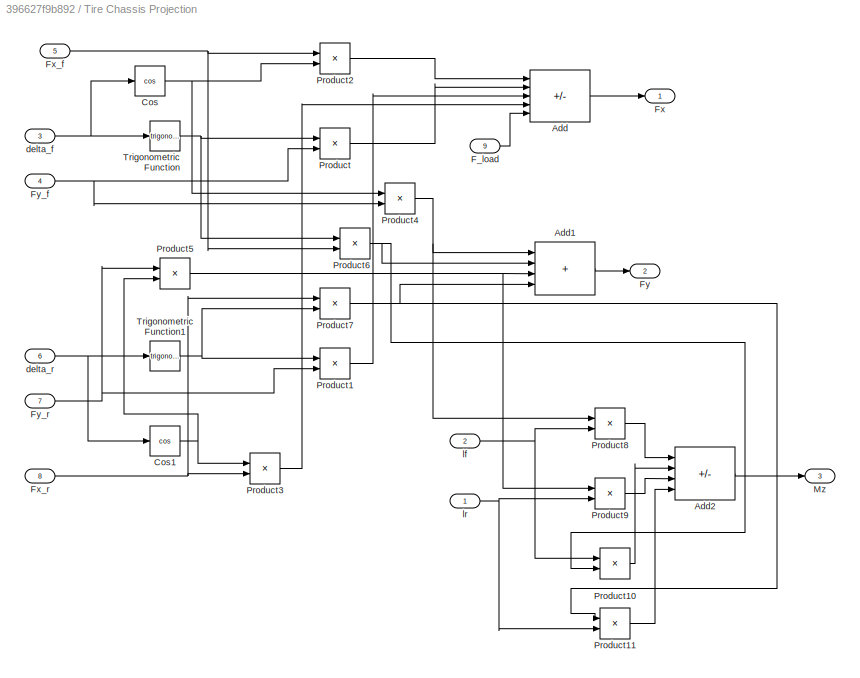
BLOCK [SubSystem] Tire Chassis Projection
  PortSchema = {"entries":[{"content":{"sides":[{"content":{"connectorIds":["In1","In2","In3","In4","In5","In6","In7","In8"]},"type":"ConnectorPlacement.EquallySpacedRectSide","uuid":"5673b256-c305-4d61-be24-85134e9539e3"},{"content":{"connectorIds":["Out1","Out2","Out3"],"side":"RIGHT"},"type":"ConnectorPlacement.EquallySpacedRectSide","uuid":"aa59e9e0-ca8f-48e9-aa74-948ec9a94037"},{"content":{"connectorIds":["...<+301ch>
BLOCK [Sum] Tire Chassis Projection/Add
  IconShape = rectangular
  Inputs = +--+-
BLOCK [Sum] Tire Chassis Projection/Add1
  IconShape = rectangular
  Inputs = ++++
BLOCK [Sum] Tire Chassis Projection/Add2
  IconShape = rectangular
  Inputs = ++--
BLOCK [Trigonometry] Tire Chassis Projection/Cos
  Operator = cos
BLOCK [Trigonometry] Tire Chassis Projection/Cos1
  Operator = cos
BLOCK [Inport] Tire Chassis Projection/F_load
  Port = 9
BLOCK [Outport] Tire Chassis Projection/Fx
BLOCK [Inport] Tire Chassis Projection/Fx_f
  Port = 5
BLOCK [Inport] Tire Chassis Projection/Fx_r
  Port = 8
BLOCK [Outport] Tire Chassis Projection/Fy
  Port = 2
BLOCK [Inport] Tire Chassis Projection/Fy_f
  Port = 4
BLOCK [Inport] Tire Chassis Projection/Fy_r
  Port = 7
BLOCK [Outport] Tire Chassis Projection/Mz
  Port = 3
BLOCK [Product] Tire Chassis Projection/Product
BLOCK [Product] Tire Chassis Projection/Product1
BLOCK [Product] Tire Chassis Projection/Product10
BLOCK [Product] Tire Chassis Projection/Product11
BLOCK [Product] Tire Chassis Projection/Product2
BLOCK [Product] Tire Chassis Projection/Product3
BLOCK [Product] Tire Chassis Projection/Product4
BLOCK [Product] Tire Chassis Projection/Product5
BLOCK [Product] Tire Chassis Projection/Product6
BLOCK [Product] Tire Chassis Projection/Product7
BLOCK [Product] Tire Chassis Projection/Product8
BLOCK [Product] Tire Chassis Projection/Product9
BLOCK [Trigonometry] Tire Chassis Projection/Trigonometric Function
BLOCK [Trigonometry] Tire Chassis Projection/Trigonometric Function1
BLOCK [Inport] Tire Chassis Projection/delta_f
  Port = 3
BLOCK [Inport] Tire Chassis Projection/delta_r
  Port = 6
BLOCK [Inport] Tire Chassis Projection/lf
  Port = 2
BLOCK [Inport] Tire Chassis Projection/lr
BLOCK [ToWorkspace] To Workspace
  FixptAsFi = on
  MaxDataPoints = inf
  SampleTime = -1
  SaveFormat = Structure With Time
  VariableName = psi
BLOCK [ToWorkspace] To Workspace1
  FixptAsFi = on
  MaxDataPoints = inf
  SampleTime = -1
  SaveFormat = Structure With Time
  VariableName = X
BLOCK [ToWorkspace] To Workspace2
  FixptAsFi = on
  MaxDataPoints = inf
  SampleTime = -1
  SaveFormat = Structure With Time
  VariableName = Y
BLOCK [ToWorkspace] To Workspace3
  FixptAsFi = on
  MaxDataPoints = inf
  SampleTime = -1
  SaveFormat = Structure With Time
  VariableName = V
BLOCK [SubSystem] TrajectoryCalculation
BLOCK [Sum] TrajectoryCalculation/Add
  IconShape = rectangular
BLOCK [Trigonometry] TrajectoryCalculation/Cos
  Operator = cos
BLOCK [DiscreteIntegrator] TrajectoryCalculation/Discrete-Time Integrator
  ICPrevOutput = DiscIntNeverNeededParam
  ICPrevScaledInput = DiscIntNeverNeededParam
  InitialConditionSetting = Auto
  SampleTime = -1
BLOCK [DiscreteIntegrator] TrajectoryCalculation/Discrete-Time Integrator1
  ICPrevOutput = DiscIntNeverNeededParam
  ICPrevScaledInput = DiscIntNeverNeededParam
  InitialConditionSetting = Auto
  SampleTime = -1
BLOCK [DiscreteIntegrator] TrajectoryCalculation/Discrete-Time Integrator2
  ICPrevOutput = DiscIntNeverNeededParam
  ICPrevScaledInput = DiscIntNeverNeededParam
  InitialConditionSetting = Auto
  SampleTime = -1
BLOCK [Product] TrajectoryCalculation/Product
BLOCK [Product] TrajectoryCalculation/Product1
BLOCK [Trigonometry] TrajectoryCalculation/Trigonometric Function
BLOCK [Inport] TrajectoryCalculation/V
BLOCK [Outport] TrajectoryCalculation/X
  Port = 2
BLOCK [Outport] TrajectoryCalculation/Y
  Port = 3
BLOCK [Inport] TrajectoryCalculation/beta
  Port = 3
BLOCK [Outport] TrajectoryCalculation/psi
BLOCK [Inport] TrajectoryCalculation/psi_dot
  Port = 2
BLOCK [Constant] lf
  Value = 1.2
BLOCK [Constant] lr
BLOCK [Constant] m
  Value = 1150
NET Add:1 -> Rear Tire Model:1, Slip Calculation:13
LINE Cxf:1 -> Front Tire Model:2
LINE Cxr:1 -> Rear Tire Model:4
LINE Cyf:1 -> Front Tire Model:1
LINE Cyr:1 -> Rear Tire Model:3
LINE Dynamics/Add1:1 -> Dynamics/Divide1:1
LINE Dynamics/Constant:1 -> Dynamics/Max:1
NET Dynamics/Cos1:1 -> Dynamics/Fxcosbeta:2, Dynamics/Fycosbeta:1
NET Dynamics/Discrete-Time Integrator1:1 -> Dynamics/Cos1:1, Dynamics/Trigonometric Function1:1, Dynamics/beta:1
LINE Dynamics/Discrete-Time Integrator2:1 -> Dynamics/Max:2
NET Dynamics/Discrete-Time Integrator:1 -> Dynamics/Subtract1:2, Dynamics/psi_dot:1
LINE Dynamics/Divide1:1 -> Dynamics/Discrete-Time Integrator2:1
LINE Dynamics/Divide2:1 -> Dynamics/Subtract1:1
LINE Dynamics/Divide:1 -> Dynamics/Discrete-Time Integrator:1
NET Dynamics/Fx:1 -> Dynamics/Fxcosbeta:1, Dynamics/Fxsinbeta:2
LINE Dynamics/Fxcosbeta:1 -> Dynamics/Add1:1
LINE Dynamics/Fxsinbeta:1 -> Dynamics/Subtract:2
NET Dynamics/Fy:1 -> Dynamics/Fycosbeta:2, Dynamics/Fysinbeta:2
LINE Dynamics/Fycosbeta:1 -> Dynamics/Subtract:1
LINE Dynamics/Fysinbeta:1 -> Dynamics/Add1:2
LINE Dynamics/J:1 -> Dynamics/Divide:2
NET Dynamics/Max:1 -> Dynamics/Product6:2, Dynamics/V:1
LINE Dynamics/Mz:1 -> Dynamics/Divide:1
LINE Dynamics/Product6:1 -> Dynamics/Divide2:2
LINE Dynamics/Subtract1:1 -> Dynamics/Discrete-Time Integrator1:1
LINE Dynamics/Subtract:1 -> Dynamics/Divide2:1
NET Dynamics/Trigonometric Function1:1 -> Dynamics/Fxsinbeta:1, Dynamics/Fysinbeta:1
NET Dynamics/m:1 -> Dynamics/Divide1:2, Dynamics/Product6:1
NET Dynamics2/Discrete-Time Integrator1:1 -> Dynamics2/psi_dot:1, Dynamics2/second stage:3
NET Dynamics2/Discrete-Time Integrator2:1 -> Dynamics2/IC:1, Dynamics2/beta:1
NET Dynamics2/Discrete-Time Integrator:1 -> Dynamics2/V:1, Dynamics2/second stage:2
LINE Dynamics2/Fx:1 -> Dynamics2/first stage:1
LINE Dynamics2/Fy:1 -> Dynamics2/first stage:2
LINE Dynamics2/IC:1 -> Dynamics2/first stage:4
LINE Dynamics2/J:1 -> Dynamics2/first stage:6
LINE Dynamics2/Mz:1 -> Dynamics2/first stage:3
LINE Dynamics2/first stage:1 -> Dynamics2/second stage:1
LINE Dynamics2/first stage:2 -> Dynamics2/Discrete-Time Integrator:1
LINE Dynamics2/first stage:3 -> Dynamics2/Discrete-Time Integrator1:1
LINE Dynamics2/m:1 -> Dynamics2/first stage:5
LINE Dynamics2/second stage:1 -> Dynamics2/Discrete-Time Integrator2:1
NET Dynamics:1 -> Kinematics and Geometry:2, Longitudinal Resistive Force:1, Slip Calculation:7, To Workspace3:1, TrajectoryCalculation:1
NET Dynamics:2 -> Kinematics and Geometry:1, Slip Calculation:9, TrajectoryCalculation:2
NET Dynamics:3 -> Kinematics and Geometry:3, Slip Calculation:8, TrajectoryCalculation:3
NET F_max_x:1 -> Front Tire Model:3, Rear Tire Model:5
NET F_max_y:1 -> Front Tire Model:4, Rear Tire Model:6
NET From Workspace1:1 -> Add:1, Tire Chassis Projection:6
NET From Workspace2:1 -> Scope:1, Slip Calculation:2
LINE From Workspace3:1 -> Slip Calculation:3
NET From Workspace:1 -> Scope1:1, Subtract:1, Tire Chassis Projection:3
LINE Front Tire Model/Abs1:1 -> Front Tire Model/If1:1
LINE Front Tire Model/Abs:1 -> Front Tire Model/If:1
LINE Front Tire Model/Cx:1 -> Front Tire Model/Product2:1
LINE Front Tire Model/Cy:1 -> Front Tire Model/Product1:1
NET Front Tire Model/F_max_x:1 -> Front Tire Model/If Action Subsystem3:1, Front Tire Model/If1:2
NET Front Tire Model/F_max_y:1 -> Front Tire Model/If Action Subsystem1:1, Front Tire Model/If:2
LINE Front Tire Model/Gain1:1 -> Front Tire Model/Fy_f:1
LINE Front Tire Model/Gain:1 -> Front Tire Model/Fx_f:1
LINE Front Tire Model/If Action Subsystem/In1:1 -> Front Tire Model/If Action Subsystem/Out1:1
LINE Front Tire Model/If Action Subsystem1/F_max_y:1 -> Front Tire Model/If Action Subsystem1/Product:1
LINE Front Tire Model/If Action Subsystem1/Product:1 -> Front Tire Model/If Action Subsystem1/Out1:1
LINE Front Tire Model/If Action Subsystem1/sign:1 -> Front Tire Model/If Action Subsystem1/Product:2
LINE Front Tire Model/If Action Subsystem1:1 -> Front Tire Model/Merge:2
LINE Front Tire Model/If Action Subsystem2/In1:1 -> Front Tire Model/If Action Subsystem2/Out1:1
LINE Front Tire Model/If Action Subsystem2:1 -> Front Tire Model/Merge1:1
LINE Front Tire Model/If Action Subsystem3/F_max_x:1 -> Front Tire Model/If Action Subsystem3/Product:1
LINE Front Tire Model/If Action Subsystem3/Product:1 -> Front Tire Model/If Action Subsystem3/Out1:1
LINE Front Tire Model/If Action Subsystem3/sign:1 -> Front Tire Model/If Action Subsystem3/Product:2
LINE Front Tire Model/If Action Subsystem3:1 -> Front Tire Model/Merge1:2
LINE Front Tire Model/If Action Subsystem:1 -> Front Tire Model/Merge:1
LINE Front Tire Model/If1:1 -> Front Tire Model/If Action Subsystem2:ifaction
LINE Front Tire Model/If1:2 -> Front Tire Model/If Action Subsystem3:ifaction
LINE Front Tire Model/If:1 -> Front Tire Model/If Action Subsystem:ifaction
LINE Front Tire Model/If:2 -> Front Tire Model/If Action Subsystem1:ifaction
LINE Front Tire Model/Merge1:1 -> Front Tire Model/Gain:1
LINE Front Tire Model/Merge:1 -> Front Tire Model/Gain1:1
NET Front Tire Model/Product1:1 -> Front Tire Model/Abs:1, Front Tire Model/If Action Subsystem:1
NET Front Tire Model/Product2:1 -> Front Tire Model/Abs1:1, Front Tire Model/If Action Subsystem2:1
LINE Front Tire Model/Sign1:1 -> Front Tire Model/If Action Subsystem3:2
LINE Front Tire Model/Sign:1 -> Front Tire Model/If Action Subsystem1:2
NET Front Tire Model/alpha:1 -> Front Tire Model/Product1:2, Front Tire Model/Sign:1
NET Front Tire Model/s:1 -> Front Tire Model/Product2:2, Front Tire Model/Sign1:1
NET Front Tire Model:1 -> Scope4:1, Tire Chassis Projection:4
NET Front Tire Model:2 -> Slip Calculation:5, Tire Chassis Projection:5
LINE J:1 -> Dynamics:4
LINE Jt:1 -> Slip Calculation:1
LINE Kinematics and Geometry/Add1:1 -> Kinematics and Geometry/Atan1:1
LINE Kinematics and Geometry/Add:1 -> Kinematics and Geometry/Atan:1
LINE Kinematics and Geometry/Atan1:1 -> Kinematics and Geometry/beta_r:1
LINE Kinematics and Geometry/Atan:1 -> Kinematics and Geometry/beta_f:1
LINE Kinematics and Geometry/Constant:1 -> Kinematics and Geometry/Max:2
LINE Kinematics and Geometry/Cos:1 -> Kinematics and Geometry/Product1:2
LINE Kinematics and Geometry/Divide1:1 -> Kinematics and Geometry/Add1:2
LINE Kinematics and Geometry/Divide:1 -> Kinematics and Geometry/Add:1
NET Kinematics and Geometry/Max:1 -> Kinematics and Geometry/Divide1:2, Kinematics and Geometry/Divide:2
LINE Kinematics and Geometry/Product1:1 -> Kinematics and Geometry/Max:1
LINE Kinematics and Geometry/Product2:1 -> Kinematics and Geometry/Divide1:1
LINE Kinematics and Geometry/Product:1 -> Kinematics and Geometry/Divide:1
NET Kinematics and Geometry/Tan:1 -> Kinematics and Geometry/Add1:1, Kinematics and Geometry/Add:2
LINE Kinematics and Geometry/V:1 -> Kinematics and Geometry/Product1:1
NET Kinematics and Geometry/beta:1 -> Kinematics and Geometry/Cos:1, Kinematics and Geometry/Tan:1
LINE Kinematics and Geometry/lf:1 -> Kinematics and Geometry/Product:1
LINE Kinematics and Geometry/lr:1 -> Kinematics and Geometry/Product2:1
NET Kinematics and Geometry/psi_dot:1 -> Kinematics and Geometry/Product2:2, Kinematics and Geometry/Product:2
LINE Kinematics and Geometry:1 -> Subtract:2
LINE Kinematics and Geometry:2 -> Add:2
LINE Longitudinal Resistive Force/Add:1 -> Longitudinal Resistive Force/F_load:1
LINE Longitudinal Resistive Force/Cd:1 -> Longitudinal Resistive Force/Product3:4
LINE Longitudinal Resistive Force/Constant1:1 -> Longitudinal Resistive Force/If Action Subsystem:1
LINE Longitudinal Resistive Force/Constant:1 -> Longitudinal Resistive Force/Product3:1
LINE Longitudinal Resistive Force/Crr:1 -> Longitudinal Resistive Force/Product4:1
LINE Longitudinal Resistive Force/Frontal_Area:1 -> Longitudinal Resistive Force/Product3:3
LINE Longitudinal Resistive Force/If Action Subsystem/zero:1 -> Longitudinal Resistive Force/If Action Subsystem/Rx:1
LINE Longitudinal Resistive Force/If Action Subsystem1/Rx:1 -> Longitudinal Resistive Force/If Action Subsystem1/Out:1
LINE Longitudinal Resistive Force/If Action Subsystem1:1 -> Longitudinal Resistive Force/Merge:2
LINE Longitudinal Resistive Force/If Action Subsystem:1 -> Longitudinal Resistive Force/Merge:1
LINE Longitudinal Resistive Force/If:1 -> Longitudinal Resistive Force/If Action Subsystem:ifaction
LINE Longitudinal Resistive Force/If:2 -> Longitudinal Resistive Force/If Action Subsystem1:ifaction
LINE Longitudinal Resistive Force/Math Function:1 -> Longitudinal Resistive Force/Product3:5
LINE Longitudinal Resistive Force/Merge:1 -> Longitudinal Resistive Force/Add:1
LINE Longitudinal Resistive Force/Product1:1 -> Longitudinal Resistive Force/Add:3
LINE Longitudinal Resistive Force/Product3:1 -> Longitudinal Resistive Force/Add:2
LINE Longitudinal Resistive Force/Product4:1 -> Longitudinal Resistive Force/If Action Subsystem1:1
LINE Longitudinal Resistive Force/Trigonometric Function:1 -> Longitudinal Resistive Force/Product1:2
NET Longitudinal Resistive Force/V:1 -> Longitudinal Resistive Force/If:1, Longitudinal Resistive Force/Math Function:1
NET Longitudinal Resistive Force/g:1 -> Longitudinal Resistive Force/Product1:1, Longitudinal Resistive Force/Product4:2
NET Longitudinal Resistive Force/m:1 -> Longitudinal Resistive Force/Product1:3, Longitudinal Resistive Force/Product4:3
LINE Longitudinal Resistive Force/ro:1 -> Longitudinal Resistive Force/Product3:2
LINE Longitudinal Resistive Force/slope:1 -> Longitudinal Resistive Force/Trigonometric Function:1
NET Longitudinal Resistive Force:1 -> F_load:1, Tire Chassis Projection:9
LINE R:1 -> Slip Calculation:4
LINE Rear Tire Model/Abs1:1 -> Rear Tire Model/If1:1
LINE Rear Tire Model/Abs:1 -> Rear Tire Model/If:1
LINE Rear Tire Model/Cx:1 -> Rear Tire Model/Product2:1
LINE Rear Tire Model/Cy:1 -> Rear Tire Model/Product1:1
NET Rear Tire Model/F_max_x:1 -> Rear Tire Model/If Action Subsystem3:1, Rear Tire Model/If1:2
NET Rear Tire Model/F_max_y:1 -> Rear Tire Model/If Action Subsystem1:1, Rear Tire Model/If:2
LINE Rear Tire Model/Gain1:1 -> Rear Tire Model/Fy_r:1
LINE Rear Tire Model/Gain:1 -> Rear Tire Model/Fx_r:1
LINE Rear Tire Model/If Action Subsystem/In1:1 -> Rear Tire Model/If Action Subsystem/Out1:1
LINE Rear Tire Model/If Action Subsystem1/F_max_y:1 -> Rear Tire Model/If Action Subsystem1/Product:1
LINE Rear Tire Model/If Action Subsystem1/Product:1 -> Rear Tire Model/If Action Subsystem1/Out1:1
LINE Rear Tire Model/If Action Subsystem1/sign:1 -> Rear Tire Model/If Action Subsystem1/Product:2
LINE Rear Tire Model/If Action Subsystem1:1 -> Rear Tire Model/Merge:2
LINE Rear Tire Model/If Action Subsystem2/In1:1 -> Rear Tire Model/If Action Subsystem2/Out1:1
LINE Rear Tire Model/If Action Subsystem2:1 -> Rear Tire Model/Merge1:1
LINE Rear Tire Model/If Action Subsystem3/F_max_x:1 -> Rear Tire Model/If Action Subsystem3/Product:1
LINE Rear Tire Model/If Action Subsystem3/Product:1 -> Rear Tire Model/If Action Subsystem3/Out1:1
LINE Rear Tire Model/If Action Subsystem3/sign:1 -> Rear Tire Model/If Action Subsystem3/Product:2
LINE Rear Tire Model/If Action Subsystem3:1 -> Rear Tire Model/Merge1:2
LINE Rear Tire Model/If Action Subsystem:1 -> Rear Tire Model/Merge:1
LINE Rear Tire Model/If1:1 -> Rear Tire Model/If Action Subsystem2:ifaction
LINE Rear Tire Model/If1:2 -> Rear Tire Model/If Action Subsystem3:ifaction
LINE Rear Tire Model/If:1 -> Rear Tire Model/If Action Subsystem:ifaction
LINE Rear Tire Model/If:2 -> Rear Tire Model/If Action Subsystem1:ifaction
LINE Rear Tire Model/Merge1:1 -> Rear Tire Model/Gain:1
LINE Rear Tire Model/Merge:1 -> Rear Tire Model/Gain1:1
NET Rear Tire Model/Product1:1 -> Rear Tire Model/Abs:1, Rear Tire Model/If Action Subsystem:1
NET Rear Tire Model/Product2:1 -> Rear Tire Model/Abs1:1, Rear Tire Model/If Action Subsystem2:1
LINE Rear Tire Model/Sign1:1 -> Rear Tire Model/If Action Subsystem3:2
LINE Rear Tire Model/Sign:1 -> Rear Tire Model/If Action Subsystem1:2
NET Rear Tire Model/alpha:1 -> Rear Tire Model/Product1:2, Rear Tire Model/Sign:1
NET Rear Tire Model/s:1 -> Rear Tire Model/Product2:2, Rear Tire Model/Sign1:1
NET Rear Tire Model:1 -> Scope5:1, Tire Chassis Projection:7
NET Rear Tire Model:2 -> Slip Calculation:6, Tire Chassis Projection:8
LINE Slip Calculation/Fx_f:1 -> Slip Calculation/wf calculator:1
LINE Slip Calculation/Fx_r:1 -> Slip Calculation/wr calculator:1
NET Slip Calculation/Jw:1 -> Slip Calculation/wf calculator:4, Slip Calculation/wr calculator:4
LINE Slip Calculation/MATLAB Function1:1 -> Slip Calculation/Saturation1:1
LINE Slip Calculation/MATLAB Function:1 -> Slip Calculation/Saturation:1
NET Slip Calculation/R:1 -> Slip Calculation/MATLAB Function1:3, Slip Calculation/MATLAB Function:3, Slip Calculation/wf calculator:2, Slip Calculation/wr calculator:2
LINE Slip Calculation/Saturation1:1 -> Slip Calculation/S_lr:1
LINE Slip Calculation/Saturation:1 -> Slip Calculation/S_lf:1
LINE Slip Calculation/Tf:1 -> Slip Calculation/wf calculator:3
LINE Slip Calculation/Tr:1 -> Slip Calculation/wr calculator:3
LINE Slip Calculation/V:1 -> Slip Calculation/Vfx and Vrx Calculation:1
LINE Slip Calculation/Vfx and Vrx Calculation/Add1:1 -> Slip Calculation/Vfx and Vrx Calculation/Sqrt:1
LINE Slip Calculation/Vfx and Vrx Calculation/Add2:1 -> Slip Calculation/Vfx and Vrx Calculation/Math Function5:1
LINE Slip Calculation/Vfx and Vrx Calculation/Add3:1 -> Slip Calculation/Vfx and Vrx Calculation/Sqrt1:1
LINE Slip Calculation/Vfx and Vrx Calculation/Add:1 -> Slip Calculation/Vfx and Vrx Calculation/Math Function2:1
LINE Slip Calculation/Vfx and Vrx Calculation/Cos1:1 -> Slip Calculation/Vfx and Vrx Calculation/Product3:2
LINE Slip Calculation/Vfx and Vrx Calculation/Cos3:1 -> Slip Calculation/Vfx and Vrx Calculation/Product7:2
LINE Slip Calculation/Vfx and Vrx Calculation/Cos:1 -> Slip Calculation/Vfx and Vrx Calculation/Math Function1:1
LINE Slip Calculation/Vfx and Vrx Calculation/Math Function1:1 -> Slip Calculation/Vfx and Vrx Calculation/Product:2
LINE Slip Calculation/Vfx and Vrx Calculation/Math Function2:1 -> Slip Calculation/Vfx and Vrx Calculation/Add1:2
LINE Slip Calculation/Vfx and Vrx Calculation/Math Function3:1 -> Slip Calculation/Vfx and Vrx Calculation/Product4:1
LINE Slip Calculation/Vfx and Vrx Calculation/Math Function4:1 -> Slip Calculation/Vfx and Vrx Calculation/Product4:2
LINE Slip Calculation/Vfx and Vrx Calculation/Math Function5:1 -> Slip Calculation/Vfx and Vrx Calculation/Add3:2
LINE Slip Calculation/Vfx and Vrx Calculation/Math Function:1 -> Slip Calculation/Vfx and Vrx Calculation/Product:1
LINE Slip Calculation/Vfx and Vrx Calculation/Product1:1 -> Slip Calculation/Vfx and Vrx Calculation/Add:1
LINE Slip Calculation/Vfx and Vrx Calculation/Product2:1 -> Slip Calculation/Vfx and Vrx Calculation/Add:2
LINE Slip Calculation/Vfx and Vrx Calculation/Product3:1 -> Slip Calculation/Vfx and Vrx Calculation/Vfx:1
LINE Slip Calculation/Vfx and Vrx Calculation/Product4:1 -> Slip Calculation/Vfx and Vrx Calculation/Add3:1
LINE Slip Calculation/Vfx and Vrx Calculation/Product5:1 -> Slip Calculation/Vfx and Vrx Calculation/Add2:1
LINE Slip Calculation/Vfx and Vrx Calculation/Product6:1 -> Slip Calculation/Vfx and Vrx Calculation/Add2:2
LINE Slip Calculation/Vfx and Vrx Calculation/Product7:1 -> Slip Calculation/Vfx and Vrx Calculation/Vrx:1
LINE Slip Calculation/Vfx and Vrx Calculation/Product:1 -> Slip Calculation/Vfx and Vrx Calculation/Add1:1
LINE Slip Calculation/Vfx and Vrx Calculation/Sqrt1:1 -> Slip Calculation/Vfx and Vrx Calculation/Product7:1
LINE Slip Calculation/Vfx and Vrx Calculation/Sqrt:1 -> Slip Calculation/Vfx and Vrx Calculation/Product3:1
LINE Slip Calculation/Vfx and Vrx Calculation/Trigonometric Function1:1 -> Slip Calculation/Vfx and Vrx Calculation/Product5:2
LINE Slip Calculation/Vfx and Vrx Calculation/Trigonometric Function2:1 -> Slip Calculation/Vfx and Vrx Calculation/Math Function4:1
LINE Slip Calculation/Vfx and Vrx Calculation/Trigonometric Function:1 -> Slip Calculation/Vfx and Vrx Calculation/Product1:2
NET Slip Calculation/Vfx and Vrx Calculation/V:1 -> Slip Calculation/Vfx and Vrx Calculation/Math Function3:1, Slip Calculation/Vfx and Vrx Calculation/Math Function:1, Slip Calculation/Vfx and Vrx Calculation/Product1:1, Slip Calculation/Vfx and Vrx Calculation/Product5:1
LINE Slip Calculation/Vfx and Vrx Calculation/alpha_f:1 -> Slip Calculation/Vfx and Vrx Calculation/Cos1:1
LINE Slip Calculation/Vfx and Vrx Calculation/alpha_r:1 -> Slip Calculation/Vfx and Vrx Calculation/Cos3:1
NET Slip Calculation/Vfx and Vrx Calculation/beta:1 -> Slip Calculation/Vfx and Vrx Calculation/Cos:1, Slip Calculation/Vfx and Vrx Calculation/Trigonometric Function1:1, Slip Calculation/Vfx and Vrx Calculation/Trigonometric Function2:1, Slip Calculation/Vfx and Vrx Calculation/Trigonometric Function:1
LINE Slip Calculation/Vfx and Vrx Calculation/lf:1 -> Slip Calculation/Vfx and Vrx Calculation/Product2:2
LINE Slip Calculation/Vfx and Vrx Calculation/lr:1 -> Slip Calculation/Vfx and Vrx Calculation/Product6:2
NET Slip Calculation/Vfx and Vrx Calculation/psi_dot:1 -> Slip Calculation/Vfx and Vrx Calculation/Product2:1, Slip Calculation/Vfx and Vrx Calculation/Product6:1
LINE Slip Calculation/Vfx and Vrx Calculation:1 -> Slip Calculation/MATLAB Function:2
LINE Slip Calculation/Vfx and Vrx Calculation:2 -> Slip Calculation/MATLAB Function1:2
LINE Slip Calculation/alpha_f:1 -> Slip Calculation/Vfx and Vrx Calculation:6
LINE Slip Calculation/alpha_r:1 -> Slip Calculation/Vfx and Vrx Calculation:7
LINE Slip Calculation/beta:1 -> Slip Calculation/Vfx and Vrx Calculation:2
LINE Slip Calculation/lf:1 -> Slip Calculation/Vfx and Vrx Calculation:4
LINE Slip Calculation/lr:1 -> Slip Calculation/Vfx and Vrx Calculation:5
LINE Slip Calculation/psi_dot:1 -> Slip Calculation/Vfx and Vrx Calculation:3
LINE Slip Calculation/wf calculator/Add:1 -> Slip Calculation/wf calculator/Divide:1
LINE Slip Calculation/wf calculator/Discrete-Time Integrator:1 -> Slip Calculation/wf calculator/wf:1
LINE Slip Calculation/wf calculator/Divide:1 -> Slip Calculation/wf calculator/Discrete-Time Integrator:1
LINE Slip Calculation/wf calculator/Fx_f:1 -> Slip Calculation/wf calculator/Product:1
LINE Slip Calculation/wf calculator/Jw:1 -> Slip Calculation/wf calculator/Divide:2
LINE Slip Calculation/wf calculator/Product:1 -> Slip Calculation/wf calculator/Add:2
LINE Slip Calculation/wf calculator/Tf:1 -> Slip Calculation/wf calculator/Add:1
LINE Slip Calculation/wf calculator/reff:1 -> Slip Calculation/wf calculator/Product:2
LINE Slip Calculation/wf calculator:1 -> Slip Calculation/MATLAB Function:1
LINE Slip Calculation/wr calculator/Add:1 -> Slip Calculation/wr calculator/Divide:1
LINE Slip Calculation/wr calculator/Discrete-Time Integrator:1 -> Slip Calculation/wr calculator/wr:1
LINE Slip Calculation/wr calculator/Divide:1 -> Slip Calculation/wr calculator/Discrete-Time Integrator:1
LINE Slip Calculation/wr calculator/Fx_r:1 -> Slip Calculation/wr calculator/Product:1
LINE Slip Calculation/wr calculator/Jw:1 -> Slip Calculation/wr calculator/Divide:2
LINE Slip Calculation/wr calculator/Product:1 -> Slip Calculation/wr calculator/Add:2
LINE Slip Calculation/wr calculator/Tr:1 -> Slip Calculation/wr calculator/Add:1
LINE Slip Calculation/wr calculator/reff:1 -> Slip Calculation/wr calculator/Product:2
LINE Slip Calculation/wr calculator:1 -> Slip Calculation/MATLAB Function1:1
NET Slip Calculation:1 -> Front Tire Model:5, Scope2:1
NET Slip Calculation:2 -> Rear Tire Model:2, Scope3:1
LINE Slip2/Fx_f:1 -> Slip2/wf calculator:1
LINE Slip2/Fx_r:1 -> Slip2/wr calculator:1
NET Slip2/Jw:1 -> Slip2/wf calculator:4, Slip2/wr calculator:4
LINE Slip2/Tf:1 -> Slip2/wf calculator:3
LINE Slip2/Tr:1 -> Slip2/wr calculator:3
NET Slip2/V:1 -> Slip2/Vfx calculator:1, Slip2/Vrx calculator:1
LINE Slip2/Vfx calculator/Add1:1 -> Slip2/Vfx calculator/Sqrt:1
LINE Slip2/Vfx calculator/Add:1 -> Slip2/Vfx calculator/Math Function2:1
LINE Slip2/Vfx calculator/Cos1:1 -> Slip2/Vfx calculator/Product2:1
LINE Slip2/Vfx calculator/Cos2:1 -> Slip2/Vfx calculator/Product3:2
LINE Slip2/Vfx calculator/Cos:1 -> Slip2/Vfx calculator/Math Function1:1
LINE Slip2/Vfx calculator/Math Function1:1 -> Slip2/Vfx calculator/Product:2
LINE Slip2/Vfx calculator/Math Function2:1 -> Slip2/Vfx calculator/Add1:1
LINE Slip2/Vfx calculator/Math Function:1 -> Slip2/Vfx calculator/Product:1
LINE Slip2/Vfx calculator/Product1:1 -> Slip2/Vfx calculator/Add:1
LINE Slip2/Vfx calculator/Product2:1 -> Slip2/Vfx calculator/Add:2
LINE Slip2/Vfx calculator/Product3:1 -> Slip2/Vfx calculator/Vfx:1
LINE Slip2/Vfx calculator/Product:1 -> Slip2/Vfx calculator/Add1:2
LINE Slip2/Vfx calculator/Sqrt:1 -> Slip2/Vfx calculator/Product3:1
NET Slip2/Vfx calculator/V:1 -> Slip2/Vfx calculator/Math Function:1, Slip2/Vfx calculator/Product2:2
LINE Slip2/Vfx calculator/alpha_f:1 -> Slip2/Vfx calculator/Cos2:1
NET Slip2/Vfx calculator/beta:1 -> Slip2/Vfx calculator/Cos1:1, Slip2/Vfx calculator/Cos:1
LINE Slip2/Vfx calculator/lf:1 -> Slip2/Vfx calculator/Product1:2
LINE Slip2/Vfx calculator/psi_dot:1 -> Slip2/Vfx calculator/Product1:1
LINE Slip2/Vfx calculator:1 -> Slip2/slip calculator:4
LINE Slip2/Vrx calculator/Add1:1 -> Slip2/Vrx calculator/Sqrt:1
LINE Slip2/Vrx calculator/Add:1 -> Slip2/Vrx calculator/Math Function2:1
LINE Slip2/Vrx calculator/Cos1:1 -> Slip2/Vrx calculator/Product2:1
LINE Slip2/Vrx calculator/Cos2:1 -> Slip2/Vrx calculator/Product3:2
LINE Slip2/Vrx calculator/Cos:1 -> Slip2/Vrx calculator/Math Function1:1
LINE Slip2/Vrx calculator/Math Function1:1 -> Slip2/Vrx calculator/Product:2
LINE Slip2/Vrx calculator/Math Function2:1 -> Slip2/Vrx calculator/Add1:1
LINE Slip2/Vrx calculator/Math Function:1 -> Slip2/Vrx calculator/Product:1
LINE Slip2/Vrx calculator/Product1:1 -> Slip2/Vrx calculator/Add:1
LINE Slip2/Vrx calculator/Product2:1 -> Slip2/Vrx calculator/Add:2
LINE Slip2/Vrx calculator/Product3:1 -> Slip2/Vrx calculator/Vrx:1
LINE Slip2/Vrx calculator/Product:1 -> Slip2/Vrx calculator/Add1:2
LINE Slip2/Vrx calculator/Sqrt:1 -> Slip2/Vrx calculator/Product3:1
NET Slip2/Vrx calculator/V:1 -> Slip2/Vrx calculator/Math Function:1, Slip2/Vrx calculator/Product2:2
LINE Slip2/Vrx calculator/alpha_r:1 -> Slip2/Vrx calculator/Cos2:1
NET Slip2/Vrx calculator/beta:1 -> Slip2/Vrx calculator/Cos1:1, Slip2/Vrx calculator/Cos:1
LINE Slip2/Vrx calculator/lr:1 -> Slip2/Vrx calculator/Product1:2
LINE Slip2/Vrx calculator/psi_dot:1 -> Slip2/Vrx calculator/Product1:1
LINE Slip2/Vrx calculator:1 -> Slip2/slip calculator:5
LINE Slip2/alpha_f:1 -> Slip2/Vfx calculator:5
LINE Slip2/alpha_r:1 -> Slip2/Vrx calculator:5
NET Slip2/beta:1 -> Slip2/Vfx calculator:2, Slip2/Vrx calculator:3
LINE Slip2/lf:1 -> Slip2/Vfx calculator:4
LINE Slip2/lr:1 -> Slip2/Vrx calculator:4
NET Slip2/psi_dot:1 -> Slip2/Vfx calculator:3, Slip2/Vrx calculator:2
NET Slip2/reff:1 -> Slip2/slip calculator:1, Slip2/wf calculator:2, Slip2/wr calculator:2
LINE Slip2/slip calculator/If Action Subsystem/Add:1 -> Slip2/slip calculator/If Action Subsystem/Divide:1
LINE Slip2/slip calculator/If Action Subsystem/Constant:1 -> Slip2/slip calculator/If Action Subsystem/Max:2
LINE Slip2/slip calculator/If Action Subsystem/Divide:1 -> Slip2/slip calculator/If Action Subsystem/slip:1
NET Slip2/slip calculator/If Action Subsystem/Max:1 -> Slip2/slip calculator/If Action Subsystem/Add:2, Slip2/slip calculator/If Action Subsystem/Divide:2
LINE Slip2/slip calculator/If Action Subsystem/Vfx:1 -> Slip2/slip calculator/If Action Subsystem/Max:1
LINE Slip2/slip calculator/If Action Subsystem/wfR:1 -> Slip2/slip calculator/If Action Subsystem/Add:1
LINE Slip2/slip calculator/If Action Subsystem1/Add:1 -> Slip2/slip calculator/If Action Subsystem1/Divide:1
LINE Slip2/slip calculator/If Action Subsystem1/Constant:1 -> Slip2/slip calculator/If Action Subsystem1/Max:2
LINE Slip2/slip calculator/If Action Subsystem1/Divide:1 -> Slip2/slip calculator/If Action Subsystem1/slip:1
NET Slip2/slip calculator/If Action Subsystem1/Max:1 -> Slip2/slip calculator/If Action Subsystem1/Add:1, Slip2/slip calculator/If Action Subsystem1/Divide:2
LINE Slip2/slip calculator/If Action Subsystem1/Vfx:1 -> Slip2/slip calculator/If Action Subsystem1/Add:2
LINE Slip2/slip calculator/If Action Subsystem1/wfR:1 -> Slip2/slip calculator/If Action Subsystem1/Max:1
LINE Slip2/slip calculator/If Action Subsystem1:1 -> Slip2/slip calculator/Merge:3
LINE Slip2/slip calculator/If Action Subsystem2/Add:1 -> Slip2/slip calculator/If Action Subsystem2/Divide:1
LINE Slip2/slip calculator/If Action Subsystem2/Constant:1 -> Slip2/slip calculator/If Action Subsystem2/Max:2
LINE Slip2/slip calculator/If Action Subsystem2/Divide:1 -> Slip2/slip calculator/If Action Subsystem2/slip:1
NET Slip2/slip calculator/If Action Subsystem2/Max:1 -> Slip2/slip calculator/If Action Subsystem2/Add:2, Slip2/slip calculator/If Action Subsystem2/Divide:2
LINE Slip2/slip calculator/If Action Subsystem2/Vrx:1 -> Slip2/slip calculator/If Action Subsystem2/Max:1
LINE Slip2/slip calculator/If Action Subsystem2/wrR:1 -> Slip2/slip calculator/If Action Subsystem2/Add:1
LINE Slip2/slip calculator/If Action Subsystem2:1 -> Slip2/slip calculator/Merge1:1
LINE Slip2/slip calculator/If Action Subsystem3/Add:1 -> Slip2/slip calculator/If Action Subsystem3/Divide:1
LINE Slip2/slip calculator/If Action Subsystem3/Constant:1 -> Slip2/slip calculator/If Action Subsystem3/Max:2
LINE Slip2/slip calculator/If Action Subsystem3/Divide:1 -> Slip2/slip calculator/If Action Subsystem3/slip:1
NET Slip2/slip calculator/If Action Subsystem3/Max:1 -> Slip2/slip calculator/If Action Subsystem3/Add:1, Slip2/slip calculator/If Action Subsystem3/Divide:2
LINE Slip2/slip calculator/If Action Subsystem3/Vrx:1 -> Slip2/slip calculator/If Action Subsystem3/Add:2
LINE Slip2/slip calculator/If Action Subsystem3/wrR:1 -> Slip2/slip calculator/If Action Subsystem3/Max:1
LINE Slip2/slip calculator/If Action Subsystem3:1 -> Slip2/slip calculator/Merge1:3
LINE Slip2/slip calculator/If Action Subsystem4/Constant:1 -> Slip2/slip calculator/If Action Subsystem4/slip:1
LINE Slip2/slip calculator/If Action Subsystem4:1 -> Slip2/slip calculator/Merge:2
LINE Slip2/slip calculator/If Action Subsystem5/Constant:1 -> Slip2/slip calculator/If Action Subsystem5/slip:1
LINE Slip2/slip calculator/If Action Subsystem5:1 -> Slip2/slip calculator/Merge1:2
LINE Slip2/slip calculator/If Action Subsystem:1 -> Slip2/slip calculator/Merge:1
LINE Slip2/slip calculator/If1:1 -> Slip2/slip calculator/If Action Subsystem2:ifaction
LINE Slip2/slip calculator/If1:2 -> Slip2/slip calculator/If Action Subsystem3:ifaction
LINE Slip2/slip calculator/If1:3 -> Slip2/slip calculator/If Action Subsystem5:ifaction
LINE Slip2/slip calculator/If:1 -> Slip2/slip calculator/If Action Subsystem:ifaction
LINE Slip2/slip calculator/If:2 -> Slip2/slip calculator/If Action Subsystem1:ifaction
LINE Slip2/slip calculator/If:3 -> Slip2/slip calculator/If Action Subsystem4:ifaction
LINE Slip2/slip calculator/Merge1:1 -> Slip2/slip calculator/S_Lr:1
LINE Slip2/slip calculator/Merge:1 -> Slip2/slip calculator/S_Lf:1
NET Slip2/slip calculator/Product1:1 -> Slip2/slip calculator/If Action Subsystem2:1, Slip2/slip calculator/If Action Subsystem3:1, Slip2/slip calculator/If1:2
NET Slip2/slip calculator/Product:1 -> Slip2/slip calculator/If Action Subsystem1:1, Slip2/slip calculator/If Action Subsystem:1, Slip2/slip calculator/If:2
NET Slip2/slip calculator/Vfx:1 -> Slip2/slip calculator/If Action Subsystem1:2, Slip2/slip calculator/If Action Subsystem:2, Slip2/slip calculator/If:1
NET Slip2/slip calculator/Vrx:1 -> Slip2/slip calculator/If Action Subsystem2:2, Slip2/slip calculator/If Action Subsystem3:2, Slip2/slip calculator/If1:1
NET Slip2/slip calculator/reff:1 -> Slip2/slip calculator/Product1:2, Slip2/slip calculator/Product:2
LINE Slip2/slip calculator/wf:1 -> Slip2/slip calculator/Product:1
LINE Slip2/slip calculator/wr:1 -> Slip2/slip calculator/Product1:1
LINE Slip2/slip calculator:1 -> Slip2/S_Lf:1
LINE Slip2/slip calculator:2 -> Slip2/S_Lr:1
LINE Slip2/wf calculator/Add:1 -> Slip2/wf calculator/Divide:1
LINE Slip2/wf calculator/Divide:1 -> Slip2/wf calculator/Integrator:1
LINE Slip2/wf calculator/Fx_f:1 -> Slip2/wf calculator/Product:1
LINE Slip2/wf calculator/Integrator:1 -> Slip2/wf calculator/wf:1
LINE Slip2/wf calculator/Jw:1 -> Slip2/wf calculator/Divide:2
LINE Slip2/wf calculator/Product:1 -> Slip2/wf calculator/Add:2
LINE Slip2/wf calculator/Tf:1 -> Slip2/wf calculator/Add:1
LINE Slip2/wf calculator/reff:1 -> Slip2/wf calculator/Product:2
LINE Slip2/wf calculator:1 -> Slip2/slip calculator:2
LINE Slip2/wr calculator/Add:1 -> Slip2/wr calculator/Divide:1
LINE Slip2/wr calculator/Divide:1 -> Slip2/wr calculator/Integrator:1
LINE Slip2/wr calculator/Fx_r:1 -> Slip2/wr calculator/Product:1
LINE Slip2/wr calculator/Integrator:1 -> Slip2/wr calculator/wr:1
LINE Slip2/wr calculator/Jw:1 -> Slip2/wr calculator/Divide:2
LINE Slip2/wr calculator/Product:1 -> Slip2/wr calculator/Add:2
LINE Slip2/wr calculator/Tr:1 -> Slip2/wr calculator/Add:1
LINE Slip2/wr calculator/reff:1 -> Slip2/wr calculator/Product:2
LINE Slip2/wr calculator:1 -> Slip2/slip calculator:3
NET Subtract:1 -> Front Tire Model:6, Slip Calculation:12
LINE Tire Chassis Projection/Add1:1 -> Tire Chassis Projection/Fy:1
LINE Tire Chassis Projection/Add2:1 -> Tire Chassis Projection/Mz:1
LINE Tire Chassis Projection/Add:1 -> Tire Chassis Projection/Fx:1
NET Tire Chassis Projection/Cos1:1 -> Tire Chassis Projection/Product3:1, Tire Chassis Projection/Product5:2
NET Tire Chassis Projection/Cos:1 -> Tire Chassis Projection/Product2:2, Tire Chassis Projection/Product4:1
LINE Tire Chassis Projection/F_load:1 -> Tire Chassis Projection/Add:5
NET Tire Chassis Projection/Fx_f:1 -> Tire Chassis Projection/Product2:1, Tire Chassis Projection/Product6:2
NET Tire Chassis Projection/Fx_r:1 -> Tire Chassis Projection/Product3:2, Tire Chassis Projection/Product7:1
NET Tire Chassis Projection/Fy_f:1 -> Tire Chassis Projection/Product4:2, Tire Chassis Projection/Product:2
NET Tire Chassis Projection/Fy_r:1 -> Tire Chassis Projection/Product1:2, Tire Chassis Projection/Product5:1
LINE Tire Chassis Projection/Product10:1 -> Tire Chassis Projection/Add2:2
LINE Tire Chassis Projection/Product11:1 -> Tire Chassis Projection/Add2:4
LINE Tire Chassis Projection/Product1:1 -> Tire Chassis Projection/Add:3
LINE Tire Chassis Projection/Product2:1 -> Tire Chassis Projection/Add:1
LINE Tire Chassis Projection/Product3:1 -> Tire Chassis Projection/Add:4
NET Tire Chassis Projection/Product4:1 -> Tire Chassis Projection/Add1:1, Tire Chassis Projection/Product8:1
NET Tire Chassis Projection/Product5:1 -> Tire Chassis Projection/Add1:3, Tire Chassis Projection/Product9:1
NET Tire Chassis Projection/Product6:1 -> Tire Chassis Projection/Add1:2, Tire Chassis Projection/Product10:2
NET Tire Chassis Projection/Product7:1 -> Tire Chassis Projection/Add1:4, Tire Chassis Projection/Product11:1
LINE Tire Chassis Projection/Product8:1 -> Tire Chassis Projection/Add2:1
LINE Tire Chassis Projection/Product9:1 -> Tire Chassis Projection/Add2:3
LINE Tire Chassis Projection/Product:1 -> Tire Chassis Projection/Add:2
NET Tire Chassis Projection/Trigonometric Function1:1 -> Tire Chassis Projection/Product1:1, Tire Chassis Projection/Product7:2
NET Tire Chassis Projection/Trigonometric Function:1 -> Tire Chassis Projection/Product6:1, Tire Chassis Projection/Product:1
NET Tire Chassis Projection/delta_f:1 -> Tire Chassis Projection/Cos:1, Tire Chassis Projection/Trigonometric Function:1
NET Tire Chassis Projection/delta_r:1 -> Tire Chassis Projection/Cos1:1, Tire Chassis Projection/Trigonometric Function1:1
NET Tire Chassis Projection/lf:1 -> Tire Chassis Projection/Product10:1, Tire Chassis Projection/Product8:2
NET Tire Chassis Projection/lr:1 -> Tire Chassis Projection/Product11:2, Tire Chassis Projection/Product9:2
LINE Tire Chassis Projection:1 -> Dynamics:1
LINE Tire Chassis Projection:2 -> Dynamics:2
LINE Tire Chassis Projection:3 -> Dynamics:3
NET TrajectoryCalculation/Add:1 -> TrajectoryCalculation/Cos:1, TrajectoryCalculation/Trigonometric Function:1
LINE TrajectoryCalculation/Cos:1 -> TrajectoryCalculation/Product:1
LINE TrajectoryCalculation/Discrete-Time Integrator1:1 -> TrajectoryCalculation/X:1
LINE TrajectoryCalculation/Discrete-Time Integrator2:1 -> TrajectoryCalculation/Y:1
NET TrajectoryCalculation/Discrete-Time Integrator:1 -> TrajectoryCalculation/Add:1, TrajectoryCalculation/psi:1
LINE TrajectoryCalculation/Product1:1 -> TrajectoryCalculation/Discrete-Time Integrator2:1
LINE TrajectoryCalculation/Product:1 -> TrajectoryCalculation/Discrete-Time Integrator1:1
LINE TrajectoryCalculation/Trigonometric Function:1 -> TrajectoryCalculation/Product1:1
NET TrajectoryCalculation/V:1 -> TrajectoryCalculation/Product1:2, TrajectoryCalculation/Product:2
LINE TrajectoryCalculation/beta:1 -> TrajectoryCalculation/Add:2
LINE TrajectoryCalculation/psi_dot:1 -> TrajectoryCalculation/Discrete-Time Integrator:1
LINE TrajectoryCalculation:1 -> To Workspace:1
LINE TrajectoryCalculation:2 -> To Workspace1:1
LINE TrajectoryCalculation:3 -> To Workspace2:1
NET lf:1 -> Kinematics and Geometry:4, Slip Calculation:10, Tire Chassis Projection:2
NET lr:1 -> Kinematics and Geometry:5, Slip Calculation:11, Tire Chassis Projection:1
NET m:1 -> Dynamics:5, Longitudinal Resistive Force:2
note: NET lines group one-source signal fan-out (src -> all destinations, sorted); 1:1 wires keep LINE
CHART Dynamics2/first stage states=1 transitions=1
  STATE_LABEL 'eML_blk_kernel()'
  STATE_LABEL 'SCRIPT:\nfunction[V_times_psidot_plus_betadot, V_dot, psi_double_dot] = fcn(Fx, Fy, Mz, beta, m, J)\n\n    % Rotation matrix components\n    R11 = -sin(beta);\n    R12 = cos(beta);\n    R21 = cos(beta);\n    R22 = sin(beta);\n\n    % Compute components of the result vector\n    first_eq = R11 * Fx + R12 * Fy;         % corresponds to m*V*(beta_dot + psi_dot)\n    second_eq = R21 * Fx + R22 * Fy;        % cor...<+241ch>'
CHART Dynamics2/second stage states=1 transitions=1
  STATE_LABEL 'eML_blk_kernel()'
  STATE_LABEL 'SCRIPT:\nfunction beta_dot  = fcn(V_times_psidot_plus_betadot, V, psi_dot)\n\n    % Avoid division by zero\n    if V == 0\n        beta_dot = 0;\n        return;\n    end\n\n    % Compute beta_dot\n    beta_dot = (V_times_psidot_plus_betadot - V * psi_dot) / V;\nend\n\n'
CHART Slip Calculation/MATLAB Function states=1 transitions=1
  STATE_LABEL 'eML_blk_kernel()'
  STATE_LABEL 'SCRIPT:\nfunction S_lf = S_lf_Calculation(wf, Vfx, R)\n\nVw = wf * R;\n\n% To avoid division by zero\nepsilon = 1e-6;\n\nif Vw < Vfx - epsilon  % Braking\n    S_lf = (Vw - Vfx) / Vfx;\nelseif Vw > Vfx + epsilon  % Acceleration\n    S_lf = (Vw - Vfx) / Vw;\nelse  % No slip \n    S_lf = 0;\nend\nend\n\n'
CHART Slip Calculation/MATLAB Function1 states=1 transitions=1
  STATE_LABEL 'eML_blk_kernel()'
  STATE_LABEL 'SCRIPT:\nfunction S_lr = S_lr_Calculation(wr, Vrx, R)\n\nVw = wr * R;\n\n% Avoid division by zero\nepsilon = 1e-6;\n\nif Vw < Vrx - epsilon  % Braking\n    S_lr = (Vw - Vrx) / Vrx;\nelseif Vw > Vrx + epsilon  % Acceleration\n    S_lr = (Vw - Vrx) / Vw;\nelse  % No slip\n    S_lr = 0;\nend\nend\n\n'
CHART Slip Calculation/MATLAB Function2 states=1 transitions=1
  STATE_LABEL 'eML_blk_kernel()'
  STATE_LABEL 'SCRIPT:\nfunction [Vfx, Vrx] = compute_axial_wheel_velocities(V, beta, psi_dot, lf, lr, alpha_f, alpha_r)\n\n% Front\nterm1_f = V^2 * cos(beta)^2;\nterm2_f = (V * sin(beta) + psi_dot * lf)^2;\nVfx = sqrt(term1_f + term2_f) * cos(alpha_f);\n\n% Rear\nterm1_r = V^2 * sin(beta)^2;\nterm2_r = (V * sin(beta) - psi_dot * lr)^2;\nVrx = sqrt(term1_r + term2_r)* cos(alpha_r);\n\nend\n'
CHART  states=0 transitions=0
CHART  states=0 transitions=0
CHART  states=0 transitions=0
CHART  states=0 transitions=0
CHART  states=0 transitions=0
